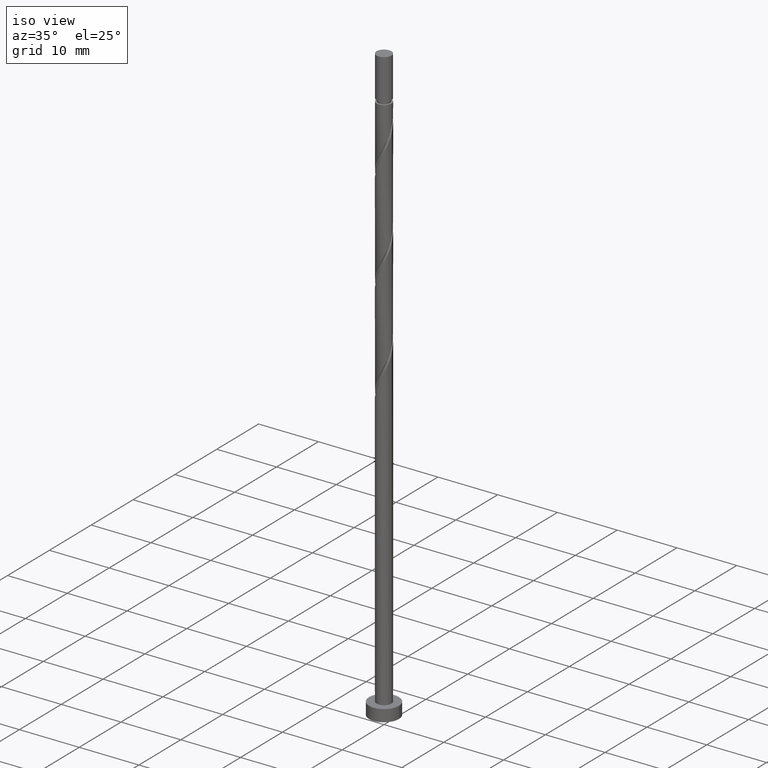
[diagram: clean part render]
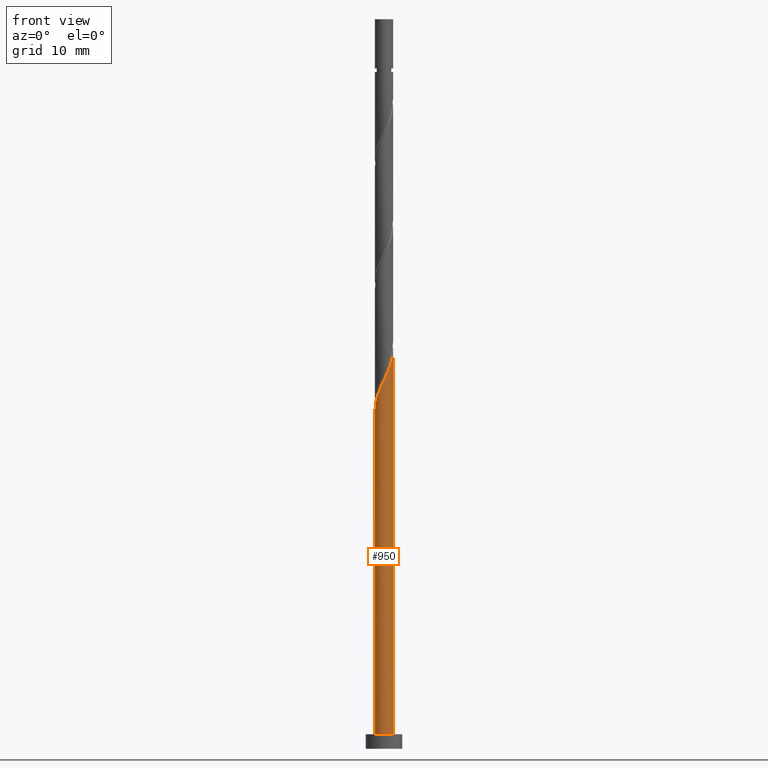
[diagram: tour spotlight — one face highlighted and labeled with its STEP entity id]
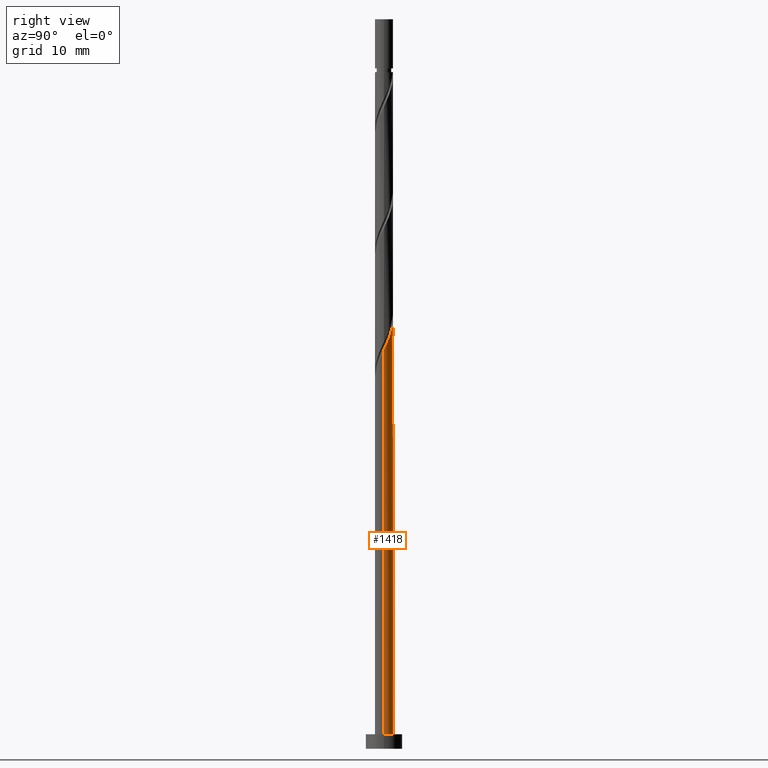
[diagram: tour spotlight — one face highlighted and labeled with its STEP entity id]
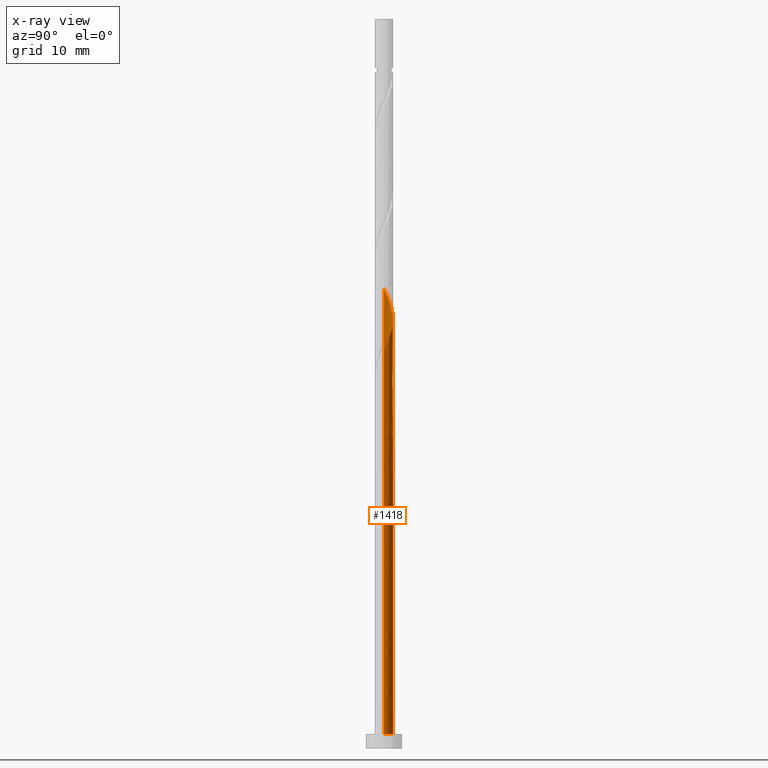
[diagram: x-ray of the same camera — body ghosted, this tour face saturated]
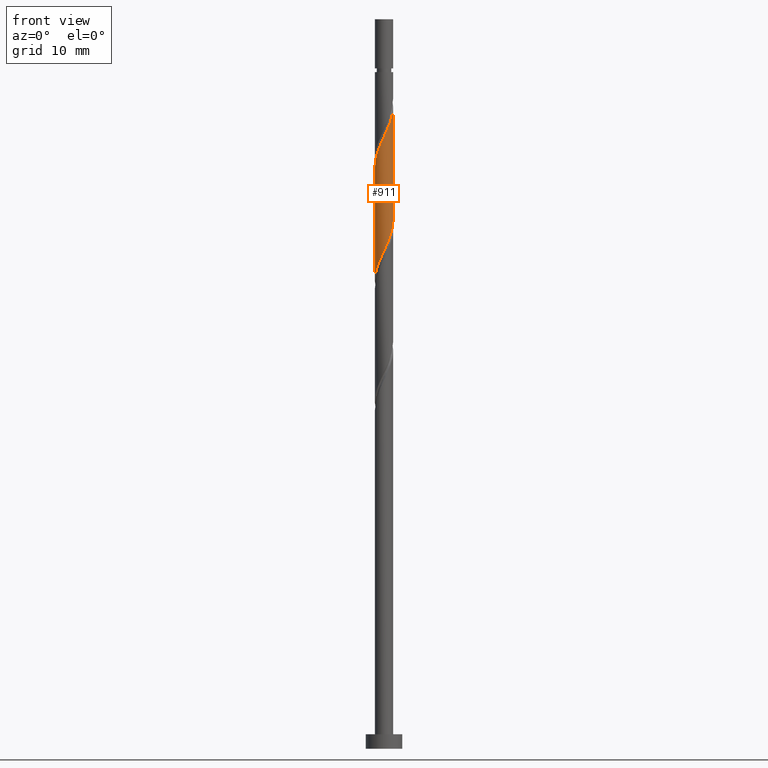
[diagram: tour spotlight — one face highlighted and labeled with its STEP entity id]
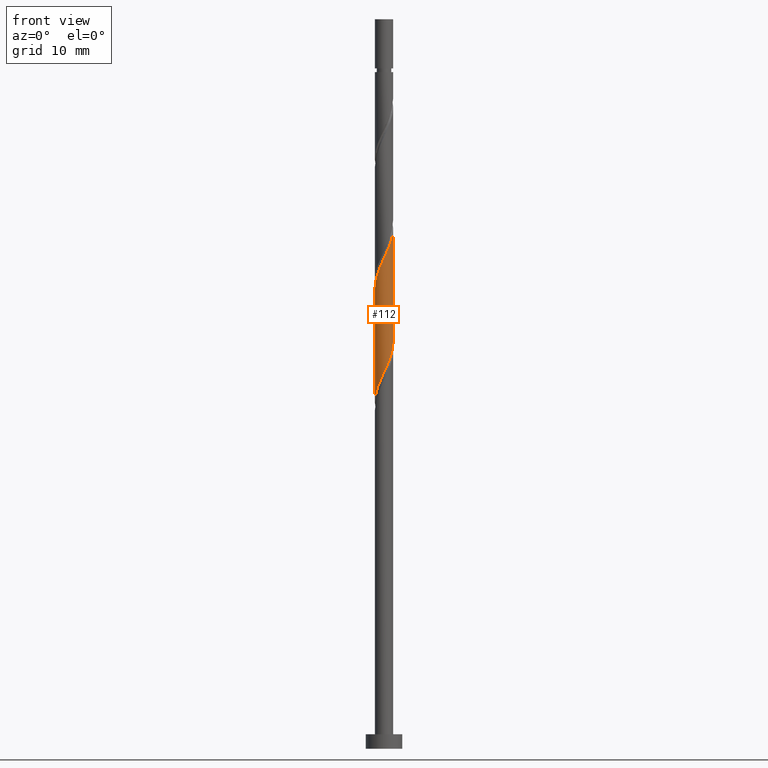
[diagram: tour spotlight — one face highlighted and labeled with its STEP entity id]
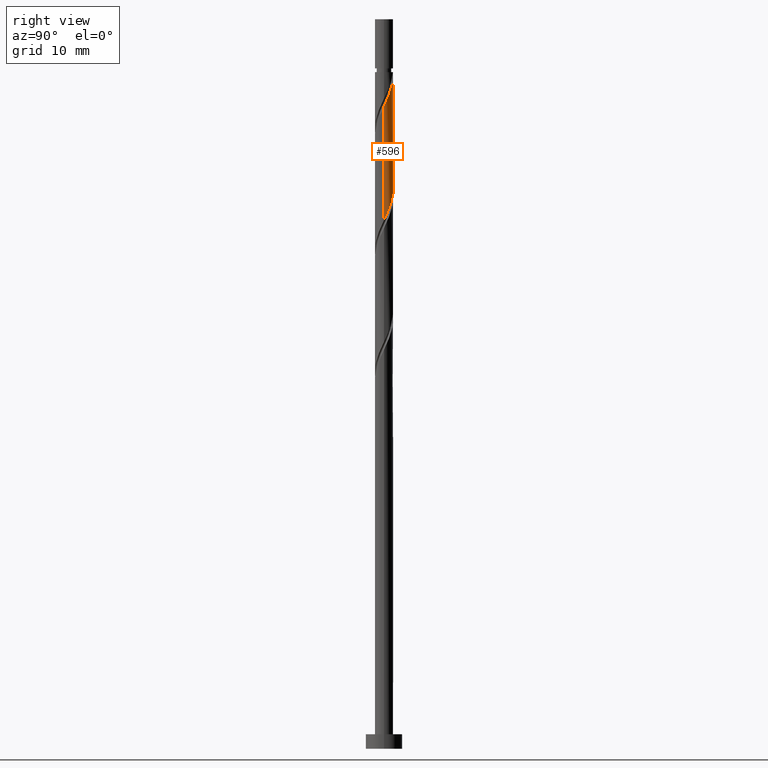
[diagram: tour spotlight — one face highlighted and labeled with its STEP entity id]
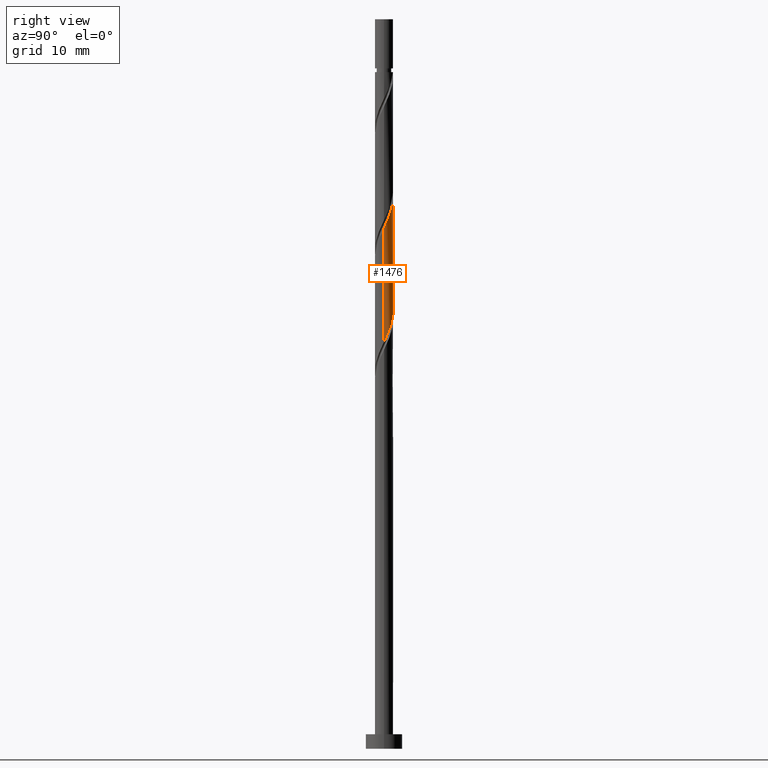
[diagram: tour spotlight — one face highlighted and labeled with its STEP entity id]
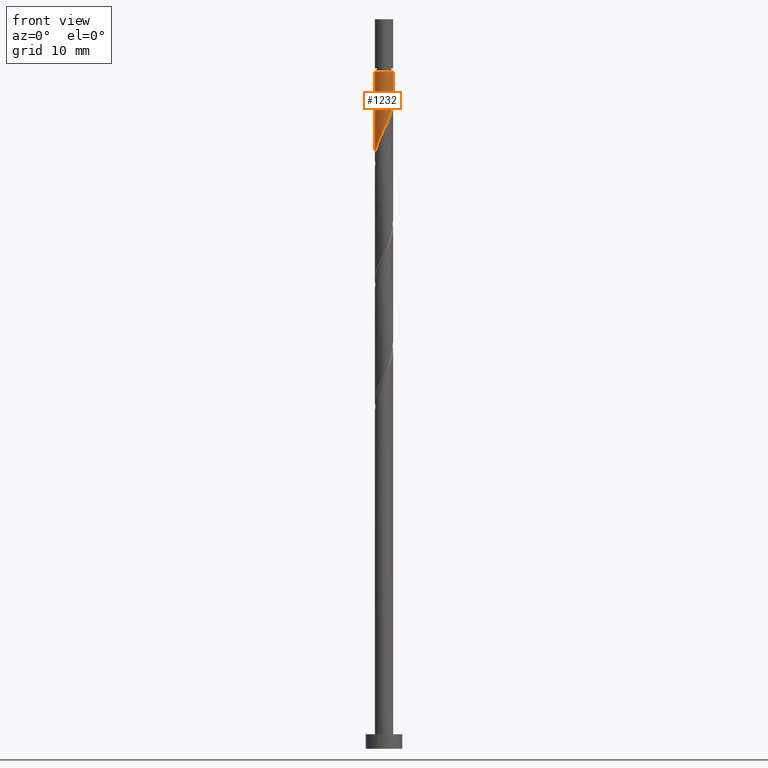
[diagram: tour spotlight — one face highlighted and labeled with its STEP entity id]
A machine part: a face-by-face anatomy tour. The part has 21 B-rep faces; the first image is the clean iso view, then the 7 largest visible faces are spotlighted one at a time (largest first), each with its STEP entity span.

Face 1 — front view, entity #950. In plain terms, the highlighted cylindrical surface (edge-blend (fillet) strip) has radius 1.25 mm, axis along (-0, -0, -1).
Definition (entity closure, byte-faithful):
#68 = CARTESIAN_POINT ( 'NONE',  ( -1.082492517692347000, -0.6627895258576391724, 47.84581808129873792 ) ) ;
#72 = EDGE_CURVE ( 'NONE', #1123, #193, #1204, .T. ) ;
#77 = CARTESIAN_POINT ( 'NONE',  ( 0.4647474106445247388, -1.181139217343036174, 51.54952178500242610 ) ) ;
#84 = CARTESIAN_POINT ( 'NONE',  ( 1.250000000000000000, 1.530808498934191571E-16, 100.0000000000000000 ) ) ;
#90 = CARTESIAN_POINT ( 'NONE',  ( 0.6527202636798884461, -1.066047024001128607, 52.01248474796540933 ) ) ;
#96 = CARTESIAN_POINT ( 'NONE',  ( -1.250000000000002220, -2.451857884508929308E-15, 46.38903726705071762 ) ) ;
#158 = AXIS2_PLACEMENT_3D ( 'NONE', #1323, #1205, #1094 ) ;
#193 = VERTEX_POINT ( 'NONE', #1297 ) ;
#194 = CARTESIAN_POINT ( 'NONE',  ( 0.03274630790878472336, -1.268860782656968000, 50.62359585907651649 ) ) ;
#201 = CARTESIAN_POINT ( 'NONE',  ( -1.250000000000002220, -2.451857884508928913E-15, 46.38903726705071762 ) ) ;
#214 = CARTESIAN_POINT ( 'NONE',  ( -0.4032044828447876039, -1.203539011191734343, 49.69766993315058556 ) ) ;
#322 = CARTESIAN_POINT ( 'NONE',  ( -0.7905228623028761614, -0.9930526726327152387, 48.77174400722464753 ) ) ;
#328 = ORIENTED_EDGE ( 'NONE', *, *, #72, .T. ) ;
#330 = CARTESIAN_POINT ( 'NONE',  ( -1.163195058626193656, -0.4576868531950767371, 47.38285511833578312 ) ) ;
#352 = CARTESIAN_POINT ( 'NONE',  ( 1.250000000000001776, -1.027053950098942163E-15, 54.72237060038404621 ) ) ;
#371 = VERTEX_POINT ( 'NONE', #352 ) ;
#404 = CYLINDRICAL_SURFACE ( 'NONE', #158, 1.250000000000000000 ) ;
#411 = CARTESIAN_POINT ( 'NONE',  ( 1.250000000000003553, -0.2038179647755680723, 54.29245108801844566 ) ) ;
#517 = DIRECTION ( 'NONE',  ( -0.000000000000000000, -0.000000000000000000, -1.000000000000000000 ) ) ;
#532 = CARTESIAN_POINT ( 'NONE',  ( 0.9779659711581923931, -0.7785130437292746564, 52.93841067389133315 ) ) ;
#550 = ORIENTED_EDGE ( 'NONE', *, *, #1043, .F. ) ;
#554 = EDGE_CURVE ( 'NONE', #193, #765, #1087, .T. ) ;
#636 = CARTESIAN_POINT ( 'NONE',  ( 0.8406931167152515982, -0.9509548306592204847, 52.47544771092834992 ) ) ;
#668 = CARTESIAN_POINT ( 'NONE',  ( 1.250000000000001998, -1.027053950098942163E-15, 54.72237060038404621 ) ) ;
#723 = DIRECTION ( 'NONE',  ( -0.000000000000000000, -0.000000000000000000, -1.000000000000000000 ) ) ;
#730 = CARTESIAN_POINT ( 'NONE',  ( -1.250000000000000000, 0.000000000000000000, 100.0000000000000000 ) ) ;
#751 = CARTESIAN_POINT ( 'NONE',  ( -0.1852290874680015964, -1.236199896924351282, 50.16063289611355458 ) ) ;
#759 = CARTESIAN_POINT ( 'NONE',  ( 1.115238825601131856, -0.6060712567993289390, 53.40137363685427374 ) ) ;
#765 = VERTEX_POINT ( 'NONE', #1082 ) ;
#832 =( BOUNDED_CURVE ( )  B_SPLINE_CURVE ( 2, ( #96, #984, #1220, #878, #330, #68, #1246, #322, #1328, #214, #751, #194, #1469, #77, #90, #636, #532, #759, #1443, #411, #668 ),
 .UNSPECIFIED., .F., .T. ) 
 B_SPLINE_CURVE_WITH_KNOTS ( ( 3, 2, 2, 2, 2, 2, 2, 2, 2, 2, 3 ),
 ( 0.05452480538552922917, 0.05555555555555558023, 0.06944444444444441977, 0.08333333333333337034, 0.09722222222222220989, 0.1111111111111111605, 0.1250000000000000000, 0.1388888888888888395, 0.1527777777777777901, 0.1666666666666666297, 0.1795248053855293402 ),
 .UNSPECIFIED. ) 
 CURVE ( )  GEOMETRIC_REPRESENTATION_ITEM ( )  RATIONAL_B_SPLINE_CURVE ( ( 0.9071930855141260297, 0.9080659294509735302, 0.9090909090909135015, 0.8952797754656481866, 0.9090909090909135015, 0.8952797754656481866, 0.9090909090909135015, 0.8952797754656481866, 0.9090909090909135015, 0.8952797754656481866, 0.9090909090909135015, 0.8952797754656481866, 0.9090909090909135015, 0.8952797754656481866, 0.9090909090909135015, 0.8952797754656481866, 0.9090909090909135015, 0.8952797754656481866, 0.9090909090909135015, 0.8963047551055879358, 0.9071930855141262517 ) ) 
 REPRESENTATION_ITEM ( '' )  );
#861 = LINE ( 'NONE', #84, #1115 ) ;
#878 = CARTESIAN_POINT ( 'NONE',  ( -1.243897599560039868, -0.2525841805325140799, 46.91989215537278568 ) ) ;
#950 = ADVANCED_FACE ( 'NONE', ( #1436 ), #404, .T. ) ;
#984 = CARTESIAN_POINT ( 'NONE',  ( -1.250000000000001998, -0.01612709291502830572, 46.42305464098307510 ) ) ;
#1008 = EDGE_CURVE ( 'NONE', #371, #765, #861, .T. ) ;
#1043 = EDGE_CURVE ( 'NONE', #1123, #371, #832, .T. ) ;
#1082 = CARTESIAN_POINT ( 'NONE',  ( 1.250000000000000000, 1.530808498934191571E-16, 2.000000000000000000 ) ) ;
#1087 = CIRCLE ( 'NONE', #1284, 1.250000000000000000 ) ;
#1094 = DIRECTION ( 'NONE',  ( -1.000000000000000000, 0.000000000000000000, 0.000000000000000000 ) ) ;
#1115 = VECTOR ( 'NONE', #517, 1000.000000000000000 ) ;
#1123 = VERTEX_POINT ( 'NONE', #201 ) ;
#1204 = LINE ( 'NONE', #730, #1274 ) ;
#1205 = DIRECTION ( 'NONE',  ( -0.000000000000000000, -0.000000000000000000, -1.000000000000000000 ) ) ;
#1220 = CARTESIAN_POINT ( 'NONE',  ( -1.249583936253720218, -0.03224881791109653756, 46.45692919240984509 ) ) ;
#1228 = ORIENTED_EDGE ( 'NONE', *, *, #554, .T. ) ;
#1246 = CARTESIAN_POINT ( 'NONE',  ( -0.9365076899976116920, -0.8279210992451770945, 48.30878104426169983 ) ) ;
#1274 = VECTOR ( 'NONE', #723, 1000.000000000000000 ) ;
#1282 = ORIENTED_EDGE ( 'NONE', *, *, #1008, .F. ) ;
#1284 = AXIS2_PLACEMENT_3D ( 'NONE', #1315, #1442, #1337 ) ;
#1297 = CARTESIAN_POINT ( 'NONE',  ( -1.250000000000000000, 0.000000000000000000, 2.000000000000000000 ) ) ;
#1315 = CARTESIAN_POINT ( 'NONE',  ( 0.000000000000000000, 0.000000000000000000, 2.000000000000000000 ) ) ;
#1323 = CARTESIAN_POINT ( 'NONE',  ( 0.000000000000000000, 0.000000000000000000, 100.0000000000000000 ) ) ;
#1328 = CARTESIAN_POINT ( 'NONE',  ( -0.5968636725738321047, -1.098295841912225068, 49.23470697018763786 ) ) ;
#1337 = DIRECTION ( 'NONE',  ( 1.000000000000000000, 0.000000000000000000, 0.000000000000000000 ) ) ;
#1359 = EDGE_LOOP ( 'NONE', ( #1282, #550, #328, #1228 ) ) ;
#1436 = FACE_OUTER_BOUND ( 'NONE', #1359, .T. ) ;
#1442 = DIRECTION ( 'NONE',  ( 0.000000000000000000, 0.000000000000000000, 1.000000000000000000 ) ) ;
#1443 = CARTESIAN_POINT ( 'NONE',  ( 1.185254549274266767, -0.3970789007548254923, 53.86433659981727118 ) ) ;
#1469 = CARTESIAN_POINT ( 'NONE',  ( 0.2487468592766550191, -1.225000000000002309, 51.08655882203948551 ) ) ;

Face 2 — right view, entity #1418. An x-ray twin of the same camera follows (body ghosted, this face saturated) — the face is partly hidden behind the body. In plain terms, the highlighted cylindrical surface (edge-blend (fillet) strip) has radius 1.25 mm, axis along (-0, -0, -1).
Definition (entity closure, byte-faithful):
#30 = CARTESIAN_POINT ( 'NONE',  ( 0.03274630790878532011, 1.268860782656966668, 43.21618845166910461 ) ) ;
#46 = CARTESIAN_POINT ( 'NONE',  ( 0.000000000000000000, 0.000000000000000000, 2.000000000000000000 ) ) ;
#58 = EDGE_CURVE ( 'NONE', #1487, #490, #233, .T. ) ;
#59 = CARTESIAN_POINT ( 'NONE',  ( -0.1852290874680007915, 1.236199896924349062, 43.67915141463204520 ) ) ;
#65 = CARTESIAN_POINT ( 'NONE',  ( -1.185254549274266767, 0.3970789007548250482, 45.53100326648392127 ) ) ;
#72 = EDGE_CURVE ( 'NONE', #1123, #193, #1204, .T. ) ;
#73 = CARTESIAN_POINT ( 'NONE',  ( -1.250000000000002220, -2.451857884508928913E-15, 63.05570393371738902 ) ) ;
#78 = VECTOR ( 'NONE', #1057, 1000.000000000000000 ) ;
#84 = CARTESIAN_POINT ( 'NONE',  ( 1.250000000000000000, 1.530808498934191571E-16, 100.0000000000000000 ) ) ;
#121 = EDGE_CURVE ( 'NONE', #490, #1245, #772, .T. ) ;
#131 = CARTESIAN_POINT ( 'NONE',  ( 1.082492517692347223, 0.6627895258576387283, 56.17915141463205941 ) ) ;
#138 = CARTESIAN_POINT ( 'NONE',  ( 1.250000000000001998, -1.027053950098942163E-15, 54.72237060038404621 ) ) ;
#144 = CARTESIAN_POINT ( 'NONE',  ( -1.185254549274266767, 0.3970789007548250482, 62.19766993315059977 ) ) ;
#151 = CARTESIAN_POINT ( 'NONE',  ( -1.115238825601132300, 0.6060712567993288280, 61.73470697018761655 ) ) ;
#176 = DIRECTION ( 'NONE',  ( 1.000000000000000000, 0.000000000000000000, 0.000000000000000000 ) ) ;
#177 = CARTESIAN_POINT ( 'NONE',  ( 0.7905228623028762724, 0.9930526726327152387, 57.10507734055799034 ) ) ;
#183 = FACE_OUTER_BOUND ( 'NONE', #1237, .T. ) ;
#190 = EDGE_CURVE ( 'NONE', #270, #1245, #909, .T. ) ;
#193 = VERTEX_POINT ( 'NONE', #1297 ) ;
#201 = CARTESIAN_POINT ( 'NONE',  ( -1.250000000000002220, -2.451857884508928913E-15, 46.38903726705071762 ) ) ;
#229 = ORIENTED_EDGE ( 'NONE', *, *, #121, .F. ) ;
#233 = LINE ( 'NONE', #366, #78 ) ;
#270 = VERTEX_POINT ( 'NONE', #1046 ) ;
#277 = CARTESIAN_POINT ( 'NONE',  ( -0.9779659711581923931, 0.7785130437292746564, 44.60507734055800455 ) ) ;
#319 =( BOUNDED_CURVE ( )  B_SPLINE_CURVE ( 2, ( #138, #1041, #1147, #921, #1156, #131, #1171, #177, #1099, #1107, #634, #996, #642, #1202, #1055, #601, #855, #151, #144, #826, #73 ),
 .UNSPECIFIED., .F., .T. ) 
 B_SPLINE_CURVE_WITH_KNOTS ( ( 3, 2, 2, 2, 2, 2, 2, 2, 2, 2, 3 ),
 ( 0.1795248053855293402, 0.1805555555555555802, 0.1944444444444444198, 0.2083333333333333703, 0.2222222222222222099, 0.2361111111111111605, 0.2500000000000000000, 0.2638888888888888395, 0.2777777777777777901, 0.2916666666666666297, 0.3045248053855292847 ),
 .UNSPECIFIED. ) 
 CURVE ( )  GEOMETRIC_REPRESENTATION_ITEM ( )  RATIONAL_B_SPLINE_CURVE ( ( 0.9071930855141262517, 0.9080659294509737522, 0.9090909090909135015, 0.8952797754656481866, 0.9090909090909135015, 0.8952797754656481866, 0.9090909090909135015, 0.8952797754656481866, 0.9090909090909135015, 0.8952797754656481866, 0.9090909090909135015, 0.8952797754656481866, 0.9090909090909135015, 0.8952797754656481866, 0.9090909090909135015, 0.8952797754656481866, 0.9090909090909135015, 0.8952797754656481866, 0.9090909090909135015, 0.8963047551055880469, 0.9071930855141261407 ) ) 
 REPRESENTATION_ITEM ( '' )  );
#352 = CARTESIAN_POINT ( 'NONE',  ( 1.250000000000001776, -1.027053950098942163E-15, 54.72237060038404621 ) ) ;
#366 = CARTESIAN_POINT ( 'NONE',  ( -1.250000000000000000, 0.000000000000000000, 100.0000000000000000 ) ) ;
#371 = VERTEX_POINT ( 'NONE', #352 ) ;
#409 = DIRECTION ( 'NONE',  ( -0.000000000000000000, -0.000000000000000000, -1.000000000000000000 ) ) ;
#480 = DIRECTION ( 'NONE',  ( -1.000000000000000000, 0.000000000000000000, 0.000000000000000000 ) ) ;
#489 = CIRCLE ( 'NONE', #952, 1.250000000000000000 ) ;
#490 = VERTEX_POINT ( 'NONE', #1355 ) ;
#494 = CARTESIAN_POINT ( 'NONE',  ( -1.249583936253718219, 0.03224881791109680124, 47.38285511833575470 ) ) ;
#517 = DIRECTION ( 'NONE',  ( -0.000000000000000000, -0.000000000000000000, -1.000000000000000000 ) ) ;
#586 = AXIS2_PLACEMENT_3D ( 'NONE', #708, #409, #747 ) ;
#601 = CARTESIAN_POINT ( 'NONE',  ( -0.8406931167152518203, 0.9509548306592201516, 60.80878104426169273 ) ) ;
#620 = CARTESIAN_POINT ( 'NONE',  ( -1.250000000000002220, -2.451857884508929308E-15, 46.38903726705071762 ) ) ;
#621 = CARTESIAN_POINT ( 'NONE',  ( -1.082492517692345224, 0.6627895258576387283, 45.99396622944688318 ) ) ;
#634 = CARTESIAN_POINT ( 'NONE',  ( 0.1852290874680022348, 1.236199896924351060, 58.49396622944687607 ) ) ;
#642 = CARTESIAN_POINT ( 'NONE',  ( -0.2487468592766548803, 1.225000000000002309, 59.41989215537281410 ) ) ;
#645 = EDGE_CURVE ( 'NONE', #765, #193, #489, .T. ) ;
#652 = ORIENTED_EDGE ( 'NONE', *, *, #1008, .T. ) ;
#653 = ORIENTED_EDGE ( 'NONE', *, *, #645, .T. ) ;
#708 = CARTESIAN_POINT ( 'NONE',  ( 0.000000000000000000, 0.000000000000000000, 100.0000000000000000 ) ) ;
#720 = DIRECTION ( 'NONE',  ( 0.000000000000000000, 0.000000000000000000, 1.000000000000000000 ) ) ;
#723 = DIRECTION ( 'NONE',  ( -0.000000000000000000, -0.000000000000000000, -1.000000000000000000 ) ) ;
#728 = EDGE_CURVE ( 'NONE', #270, #1123, #932, .T. ) ;
#730 = CARTESIAN_POINT ( 'NONE',  ( -1.250000000000000000, 0.000000000000000000, 100.0000000000000000 ) ) ;
#747 = DIRECTION ( 'NONE',  ( -1.000000000000000000, 0.000000000000000000, 0.000000000000000000 ) ) ;
#764 = ORIENTED_EDGE ( 'NONE', *, *, #72, .F. ) ;
#765 = VERTEX_POINT ( 'NONE', #1082 ) ;
#772 =( BOUNDED_CURVE ( )  B_SPLINE_CURVE ( 2, ( #1078, #849, #494, #1316, #835, #621, #1093, #1410, #1083, #1302, #59, #30, #813 ),
 .UNSPECIFIED., .F., .T. ) 
 B_SPLINE_CURVE_WITH_KNOTS ( ( 3, 2, 2, 2, 2, 2, 3 ),
 ( 0.9295248053855289516, 0.9305555555555555802, 0.9444444444444444198, 0.9583333333333333703, 0.9722222222222222099, 0.9861111111111111605, 1.000000000000000000 ),
 .UNSPECIFIED. ) 
 CURVE ( )  GEOMETRIC_REPRESENTATION_ITEM ( )  RATIONAL_B_SPLINE_CURVE ( ( 0.9071930855141195904, 0.9080659294509673130, 0.9090909090909075063, 0.8952797754656419693, 0.9090909090909075063, 0.8952797754656419693, 0.9090909090909075063, 0.8952797754656419693, 0.9090909090909075063, 0.8952797754656419693, 0.9090909090909075063, 0.8952797754656419693, 0.9090909090909075063 ) ) 
 REPRESENTATION_ITEM ( '' )  );
#806 = ORIENTED_EDGE ( 'NONE', *, *, #58, .F. ) ;
#813 = CARTESIAN_POINT ( 'NONE',  ( 0.2487468592766552966, 1.225000000000000089, 42.75322548870613559 ) ) ;
#823 = CARTESIAN_POINT ( 'NONE',  ( -0.8406931167152518203, 0.9509548306592201516, 44.14211437759501422 ) ) ;
#826 = CARTESIAN_POINT ( 'NONE',  ( -1.250000000000003109, 0.2038179647755682389, 62.62578442135176005 ) ) ;
#835 = CARTESIAN_POINT ( 'NONE',  ( -1.163195058626191214, 0.4576868531950761820, 46.45692919240983088 ) ) ;
#840 = CARTESIAN_POINT ( 'NONE',  ( -0.2487468592766548803, 1.225000000000002309, 42.75322548870613559 ) ) ;
#849 = CARTESIAN_POINT ( 'NONE',  ( -1.250000000000000000, 0.01612709291502425688, 47.41672966976253178 ) ) ;
#855 = CARTESIAN_POINT ( 'NONE',  ( -0.9779659711581923931, 0.7785130437292746564, 61.27174400722467595 ) ) ;
#861 = LINE ( 'NONE', #84, #1115 ) ;
#909 = CIRCLE ( 'NONE', #1106, 1.250000000000000000 ) ;
#921 = CARTESIAN_POINT ( 'NONE',  ( 1.243897599560039868, 0.2525841805325139688, 55.25322548870612849 ) ) ;
#926 = CARTESIAN_POINT ( 'NONE',  ( 0.000000000000000000, 0.000000000000000000, 42.75322548870613559 ) ) ;
#932 =( BOUNDED_CURVE ( )  B_SPLINE_CURVE ( 2, ( #840, #1306, #1088, #823, #277, #976, #65, #1429, #620 ),
 .UNSPECIFIED., .F., .T. ) 
 B_SPLINE_CURVE_WITH_KNOTS ( ( 3, 2, 2, 2, 3 ),
 ( 0.000000000000000000, 0.01388888888888883955, 0.02777777777777779011, 0.04166666666666662966, 0.05452480538552922917 ),
 .UNSPECIFIED. ) 
 CURVE ( )  GEOMETRIC_REPRESENTATION_ITEM ( )  RATIONAL_B_SPLINE_CURVE ( ( 0.9090909090909135015, 0.8952797754656481866, 0.9090909090909135015, 0.8952797754656481866, 0.9090909090909135015, 0.8952797754656481866, 0.9090909090909135015, 0.8963047551055881579, 0.9071930855141260297 ) ) 
 REPRESENTATION_ITEM ( '' )  );
#952 = AXIS2_PLACEMENT_3D ( 'NONE', #46, #720, #176 ) ;
#976 = CARTESIAN_POINT ( 'NONE',  ( -1.115238825601132300, 0.6060712567993288280, 45.06804030352094514 ) ) ;
#996 = CARTESIAN_POINT ( 'NONE',  ( -0.03274630790878510500, 1.268860782656968000, 58.95692919240984509 ) ) ;
#1008 = EDGE_CURVE ( 'NONE', #371, #765, #861, .T. ) ;
#1041 = CARTESIAN_POINT ( 'NONE',  ( 1.250000000000001776, 0.01612709291503009248, 54.75638797431641791 ) ) ;
#1046 = CARTESIAN_POINT ( 'NONE',  ( -0.2487468592766548803, 1.225000000000002309, 42.75322548870613559 ) ) ;
#1055 = CARTESIAN_POINT ( 'NONE',  ( -0.6527202636798885571, 1.066047024001128607, 60.34581808129874503 ) ) ;
#1057 = DIRECTION ( 'NONE',  ( -0.000000000000000000, -0.000000000000000000, -1.000000000000000000 ) ) ;
#1069 = ORIENTED_EDGE ( 'NONE', *, *, #190, .T. ) ;
#1078 = CARTESIAN_POINT ( 'NONE',  ( -1.250000000000000222, -7.021314277040088684E-16, 47.45074704369489638 ) ) ;
#1082 = CARTESIAN_POINT ( 'NONE',  ( 1.250000000000000000, 1.530808498934191571E-16, 2.000000000000000000 ) ) ;
#1083 = CARTESIAN_POINT ( 'NONE',  ( -0.5968636725738306614, 1.098295841912223070, 44.60507734055797613 ) ) ;
#1088 = CARTESIAN_POINT ( 'NONE',  ( -0.6527202636798885571, 1.066047024001128607, 43.67915141463208073 ) ) ;
#1093 = CARTESIAN_POINT ( 'NONE',  ( -0.9365076899976096936, 0.8279210992451759843, 45.53100326648391416 ) ) ;
#1099 = CARTESIAN_POINT ( 'NONE',  ( 0.5968636725738323268, 1.098295841912225068, 57.56804030352096646 ) ) ;
#1106 = AXIS2_PLACEMENT_3D ( 'NONE', #926, #1414, #480 ) ;
#1107 = CARTESIAN_POINT ( 'NONE',  ( 0.4032044828447884366, 1.203539011191733898, 58.03100326648392127 ) ) ;
#1115 = VECTOR ( 'NONE', #517, 1000.000000000000000 ) ;
#1117 = ORIENTED_EDGE ( 'NONE', *, *, #728, .F. ) ;
#1123 = VERTEX_POINT ( 'NONE', #201 ) ;
#1136 = CARTESIAN_POINT ( 'NONE',  ( -1.250000000000002220, -2.451857884508928913E-15, 63.05570393371738902 ) ) ;
#1147 = CARTESIAN_POINT ( 'NONE',  ( 1.249583936253720218, 0.03224881791109665552, 54.79026252574318789 ) ) ;
#1156 = CARTESIAN_POINT ( 'NONE',  ( 1.163195058626193878, 0.4576868531950764596, 55.71618845166910461 ) ) ;
#1171 = CARTESIAN_POINT ( 'NONE',  ( 0.9365076899976113589, 0.8279210992451773166, 56.64211437759503553 ) ) ;
#1202 = CARTESIAN_POINT ( 'NONE',  ( -0.4647474106445250719, 1.181139217343036174, 59.88285511833576180 ) ) ;
#1204 = LINE ( 'NONE', #730, #1274 ) ;
#1237 = EDGE_LOOP ( 'NONE', ( #1375, #652, #653, #764, #1117, #1069, #229, #806 ) ) ;
#1245 = VERTEX_POINT ( 'NONE', #1387 ) ;
#1274 = VECTOR ( 'NONE', #723, 1000.000000000000000 ) ;
#1297 = CARTESIAN_POINT ( 'NONE',  ( -1.250000000000000000, 0.000000000000000000, 2.000000000000000000 ) ) ;
#1302 = CARTESIAN_POINT ( 'NONE',  ( -0.4032044828447868823, 1.203539011191732566, 44.14211437759503553 ) ) ;
#1306 = CARTESIAN_POINT ( 'NONE',  ( -0.4647474106445250719, 1.181139217343036174, 43.21618845166909040 ) ) ;
#1316 = CARTESIAN_POINT ( 'NONE',  ( -1.243897599560038314, 0.2525841805325140244, 46.91989215537280700 ) ) ;
#1340 = EDGE_CURVE ( 'NONE', #371, #1487, #319, .T. ) ;
#1355 = CARTESIAN_POINT ( 'NONE',  ( -1.250000000000000222, -7.021314277040088684E-16, 47.45074704369489638 ) ) ;
#1375 = ORIENTED_EDGE ( 'NONE', *, *, #1340, .F. ) ;
#1387 = CARTESIAN_POINT ( 'NONE',  ( 0.2487468592766552966, 1.225000000000000089, 42.75322548870613559 ) ) ;
#1410 = CARTESIAN_POINT ( 'NONE',  ( -0.7905228623028748292, 0.9930526726327140175, 45.06804030352095936 ) ) ;
#1414 = DIRECTION ( 'NONE',  ( 0.000000000000000000, -0.000000000000000000, -1.000000000000000000 ) ) ;
#1418 = ADVANCED_FACE ( 'NONE', ( #183 ), #1440, .T. ) ;
#1429 = CARTESIAN_POINT ( 'NONE',  ( -1.250000000000002887, 0.2038179647755690715, 45.95911775468509575 ) ) ;
#1440 = CYLINDRICAL_SURFACE ( 'NONE', #586, 1.250000000000000000 ) ;
#1487 = VERTEX_POINT ( 'NONE', #1136 ) ;

Face 3 — front view, entity #911. In plain terms, the highlighted cylindrical surface (edge-blend (fillet) strip) has radius 1.25 mm, axis along (-0, -0, -1).
Definition (entity closure, byte-faithful):
#4 =( BOUNDED_CURVE ( )  B_SPLINE_CURVE ( 2, ( #920, #1267, #1155, #578, #363, #789, #130, #1146, #122, #468, #568, #801, #684, #1145, #453, #1386, #239, #1154, #1035, #798, #1423 ),
 .UNSPECIFIED., .F., .T. ) 
 B_SPLINE_CURVE_WITH_KNOTS ( ( 3, 2, 2, 2, 2, 2, 2, 2, 2, 2, 3 ),
 ( 0.5545248053855288406, 0.5555555555555555802, 0.5694444444444444198, 0.5833333333333333703, 0.5972222222222222099, 0.6111111111111111605, 0.6250000000000000000, 0.6388888888888888395, 0.6527777777777777901, 0.6666666666666666297, 0.6795248053855288406 ),
 .UNSPECIFIED. ) 
 CURVE ( )  GEOMETRIC_REPRESENTATION_ITEM ( )  RATIONAL_B_SPLINE_CURVE ( ( 0.9071930855141193684, 0.9080659294509672019, 0.9090909090909075063, 0.8952797754656419693, 0.9090909090909075063, 0.8952797754656419693, 0.9090909090909075063, 0.8952797754656419693, 0.9090909090909075063, 0.8952797754656419693, 0.9090909090909075063, 0.8952797754656419693, 0.9090909090909075063, 0.8952797754656419693, 0.9090909090909075063, 0.8952797754656419693, 0.9090909090909075063, 0.8952797754656419693, 0.9090909090909075063, 0.8963047551055822737, 0.9071930855141193684 ) ) 
 REPRESENTATION_ITEM ( '' )  );
#43 = EDGE_CURVE ( 'NONE', #421, #451, #74, .T. ) ;
#53 = CARTESIAN_POINT ( 'NONE',  ( 0.8406931167152515982, -0.9509548306592204847, 85.80878104426170694 ) ) ;
#60 = CARTESIAN_POINT ( 'NONE',  ( 1.185254549274266767, -0.3970789007548254923, 87.19766993315060688 ) ) ;
#74 = LINE ( 'NONE', #523, #573 ) ;
#122 = CARTESIAN_POINT ( 'NONE',  ( 0.5968636725738306614, -1.098295841912223070, 69.60507734055798323 ) ) ;
#124 = EDGE_CURVE ( 'NONE', #675, #908, #1281, .T. ) ;
#130 = CARTESIAN_POINT ( 'NONE',  ( 0.9365076899976095826, -0.8279210992451763174, 70.53100326648387863 ) ) ;
#147 = CARTESIAN_POINT ( 'NONE',  ( -0.9365076899976116920, -0.8279210992451770945, 81.64211437759503553 ) ) ;
#173 = DIRECTION ( 'NONE',  ( -1.000000000000000000, 0.000000000000000000, 0.000000000000000000 ) ) ;
#178 = DIRECTION ( 'NONE',  ( -0.000000000000000000, -0.000000000000000000, -1.000000000000000000 ) ) ;
#227 = AXIS2_PLACEMENT_3D ( 'NONE', #266, #178, #173 ) ;
#238 = EDGE_LOOP ( 'NONE', ( #683, #263, #1468, #335 ) ) ;
#239 = CARTESIAN_POINT ( 'NONE',  ( -0.9779659711581906167, -0.7785130437292729910, 65.90137363685427374 ) ) ;
#251 = CARTESIAN_POINT ( 'NONE',  ( -1.250000000000001776, -2.317407185586885333E-15, 79.72237060038406753 ) ) ;
#255 = CARTESIAN_POINT ( 'NONE',  ( 1.250000000000000000, 1.530808498934191571E-16, 100.0000000000000000 ) ) ;
#263 = ORIENTED_EDGE ( 'NONE', *, *, #850, .F. ) ;
#266 = CARTESIAN_POINT ( 'NONE',  ( 0.000000000000000000, 0.000000000000000000, 100.0000000000000000 ) ) ;
#327 =( BOUNDED_CURVE ( )  B_SPLINE_CURVE ( 2, ( #251, #1051, #374, #819, #703, #1173, #147, #1064, #965, #1193, #949, #830, #630, #731, #960, #53, #1412, #1295, #60, #485, #504 ),
 .UNSPECIFIED., .F., .T. ) 
 B_SPLINE_CURVE_WITH_KNOTS ( ( 3, 2, 2, 2, 2, 2, 2, 2, 2, 2, 3 ),
 ( 0.5545248053855290626, 0.5555555555555555802, 0.5694444444444444198, 0.5833333333333332593, 0.5972222222222222099, 0.6111111111111111605, 0.6250000000000000000, 0.6388888888888888395, 0.6527777777777777901, 0.6666666666666667407, 0.6795248053855287296 ),
 .UNSPECIFIED. ) 
 CURVE ( )  GEOMETRIC_REPRESENTATION_ITEM ( )  RATIONAL_B_SPLINE_CURVE ( ( 0.9071930855141258077, 0.9080659294509734192, 0.9090909090909135015, 0.8952797754656481866, 0.9090909090909135015, 0.8952797754656481866, 0.9090909090909135015, 0.8952797754656481866, 0.9090909090909135015, 0.8952797754656481866, 0.9090909090909135015, 0.8952797754656481866, 0.9090909090909135015, 0.8952797754656481866, 0.9090909090909135015, 0.8952797754656481866, 0.9090909090909135015, 0.8952797754656481866, 0.9090909090909135015, 0.8963047551055886020, 0.9071930855141252525 ) ) 
 REPRESENTATION_ITEM ( '' )  );
#335 = ORIENTED_EDGE ( 'NONE', *, *, #580, .F. ) ;
#363 = CARTESIAN_POINT ( 'NONE',  ( 1.163195058626191214, -0.4576868531950760710, 71.45692919240983088 ) ) ;
#374 = CARTESIAN_POINT ( 'NONE',  ( -1.249583936253720218, -0.03224881791109653756, 79.79026252574318789 ) ) ;
#421 = VERTEX_POINT ( 'NONE', #648 ) ;
#434 = CARTESIAN_POINT ( 'NONE',  ( -1.250000000000000222, -7.021314277040088684E-16, 64.11741371036157489 ) ) ;
#451 = VERTEX_POINT ( 'NONE', #434 ) ;
#453 = CARTESIAN_POINT ( 'NONE',  ( -0.6527202636798878910, -1.066047024001125942, 66.82729956278019756 ) ) ;
#468 = CARTESIAN_POINT ( 'NONE',  ( 0.4032044828447866602, -1.203539011191733010, 69.14211437759502132 ) ) ;
#481 = VECTOR ( 'NONE', #700, 1000.000000000000000 ) ;
#485 = CARTESIAN_POINT ( 'NONE',  ( 1.250000000000000000, -0.2038179647755774815, 87.62578442135172452 ) ) ;
#504 = CARTESIAN_POINT ( 'NONE',  ( 1.250000000000001998, 5.770175828737692961E-16, 88.05570393371741034 ) ) ;
#523 = CARTESIAN_POINT ( 'NONE',  ( -1.250000000000000000, 0.000000000000000000, 100.0000000000000000 ) ) ;
#568 = CARTESIAN_POINT ( 'NONE',  ( 0.1852290874680007082, -1.236199896924349062, 68.67915141463204520 ) ) ;
#573 = VECTOR ( 'NONE', #1424, 1000.000000000000000 ) ;
#578 = CARTESIAN_POINT ( 'NONE',  ( 1.243897599560038314, -0.2525841805325141909, 71.91989215537279279 ) ) ;
#580 = EDGE_CURVE ( 'NONE', #908, #451, #4, .T. ) ;
#607 = CARTESIAN_POINT ( 'NONE',  ( 1.250000000000001776, 5.770175828737692961E-16, 88.05570393371739613 ) ) ;
#630 = CARTESIAN_POINT ( 'NONE',  ( 0.2487468592766550191, -1.225000000000002309, 84.41989215537283542 ) ) ;
#648 = CARTESIAN_POINT ( 'NONE',  ( -1.250000000000001776, -2.317407185586885333E-15, 79.72237060038406753 ) ) ;
#675 = VERTEX_POINT ( 'NONE', #607 ) ;
#683 = ORIENTED_EDGE ( 'NONE', *, *, #124, .F. ) ;
#684 = CARTESIAN_POINT ( 'NONE',  ( -0.2487468592766550746, -1.224999999999999867, 67.75322548870612138 ) ) ;
#700 = DIRECTION ( 'NONE',  ( -0.000000000000000000, -0.000000000000000000, -1.000000000000000000 ) ) ;
#703 = CARTESIAN_POINT ( 'NONE',  ( -1.163195058626193656, -0.4576868531950767371, 80.71618845166909750 ) ) ;
#710 = FACE_OUTER_BOUND ( 'NONE', #238, .T. ) ;
#731 = CARTESIAN_POINT ( 'NONE',  ( 0.4647474106445247388, -1.181139217343036174, 84.88285511833576891 ) ) ;
#736 = CYLINDRICAL_SURFACE ( 'NONE', #227, 1.250000000000000000 ) ;
#789 = CARTESIAN_POINT ( 'NONE',  ( 1.082492517692345002, -0.6627895258576392834, 70.99396622944686897 ) ) ;
#798 = CARTESIAN_POINT ( 'NONE',  ( -1.249999999999999112, -0.2038179647755743729, 64.54733322272718965 ) ) ;
#801 = CARTESIAN_POINT ( 'NONE',  ( -0.03274630790878577807, -1.268860782656966890, 68.21618845166911171 ) ) ;
#819 = CARTESIAN_POINT ( 'NONE',  ( -1.243897599560039868, -0.2525841805325140799, 80.25322548870612138 ) ) ;
#830 = CARTESIAN_POINT ( 'NONE',  ( 0.03274630790878472336, -1.268860782656968000, 83.95692919240984509 ) ) ;
#850 = EDGE_CURVE ( 'NONE', #421, #675, #327, .T. ) ;
#908 = VERTEX_POINT ( 'NONE', #1426 ) ;
#911 = ADVANCED_FACE ( 'NONE', ( #710 ), #736, .T. ) ;
#920 = CARTESIAN_POINT ( 'NONE',  ( 1.250000000000000444, 1.923391942912577386E-16, 72.45074704369490348 ) ) ;
#949 = CARTESIAN_POINT ( 'NONE',  ( -0.1852290874680015964, -1.236199896924351282, 83.49396622944689739 ) ) ;
#960 = CARTESIAN_POINT ( 'NONE',  ( 0.6527202636798884461, -1.066047024001128607, 85.34581808129874503 ) ) ;
#965 = CARTESIAN_POINT ( 'NONE',  ( -0.5968636725738321047, -1.098295841912225068, 82.56804030352097357 ) ) ;
#1035 = CARTESIAN_POINT ( 'NONE',  ( -1.185254549274264768, -0.3970789007548236604, 64.97544771092834992 ) ) ;
#1051 = CARTESIAN_POINT ( 'NONE',  ( -1.250000000000001998, -0.01612709291502557526, 79.75638797431642502 ) ) ;
#1064 = CARTESIAN_POINT ( 'NONE',  ( -0.7905228623028761614, -0.9930526726327152387, 82.10507734055798323 ) ) ;
#1145 = CARTESIAN_POINT ( 'NONE',  ( -0.4647474106445250719, -1.181139217343034176, 67.29026252574317368 ) ) ;
#1146 = CARTESIAN_POINT ( 'NONE',  ( 0.7905228623028744961, -0.9930526726327140175, 70.06804030352097357 ) ) ;
#1154 = CARTESIAN_POINT ( 'NONE',  ( -1.115238825601130745, -0.6060712567993279398, 65.43841067389134025 ) ) ;
#1155 = CARTESIAN_POINT ( 'NONE',  ( 1.249583936253718663, -0.03224881791109725920, 72.38285511833575470 ) ) ;
#1173 = CARTESIAN_POINT ( 'NONE',  ( -1.082492517692347000, -0.6627895258576391724, 81.17915141463207362 ) ) ;
#1193 = CARTESIAN_POINT ( 'NONE',  ( -0.4032044828447876039, -1.203539011191734343, 83.03100326648392127 ) ) ;
#1267 = CARTESIAN_POINT ( 'NONE',  ( 1.250000000000000222, -0.01612709291502300094, 72.41672966976251757 ) ) ;
#1281 = LINE ( 'NONE', #255, #481 ) ;
#1295 = CARTESIAN_POINT ( 'NONE',  ( 1.115238825601131856, -0.6060712567993289390, 86.73470697018760234 ) ) ;
#1386 = CARTESIAN_POINT ( 'NONE',  ( -0.8406931167152508211, -0.9509548306592188194, 66.36433659981726407 ) ) ;
#1412 = CARTESIAN_POINT ( 'NONE',  ( 0.9779659711581923931, -0.7785130437292746564, 86.27174400722468306 ) ) ;
#1423 = CARTESIAN_POINT ( 'NONE',  ( -1.250000000000000000, -7.021314277040088684E-16, 64.11741371036157489 ) ) ;
#1424 = DIRECTION ( 'NONE',  ( -0.000000000000000000, -0.000000000000000000, -1.000000000000000000 ) ) ;
#1426 = CARTESIAN_POINT ( 'NONE',  ( 1.250000000000000444, 1.923391942912577386E-16, 72.45074704369488927 ) ) ;
#1468 = ORIENTED_EDGE ( 'NONE', *, *, #43, .T. ) ;

Face 4 — front view, entity #112. In plain terms, the highlighted cylindrical surface (edge-blend (fillet) strip) has radius 1.25 mm, axis along (-0, -0, -1).
Definition (entity closure, byte-faithful):
#32 = CARTESIAN_POINT ( 'NONE',  ( -1.082492517692347000, -0.6627895258576391724, 64.51248474796537380 ) ) ;
#41 = CYLINDRICAL_SURFACE ( 'NONE', #546, 1.250000000000000000 ) ;
#58 = EDGE_CURVE ( 'NONE', #1487, #490, #233, .T. ) ;
#66 = CARTESIAN_POINT ( 'NONE',  ( -0.7905228623028761614, -0.9930526726327152387, 65.43841067389132604 ) ) ;
#78 = VECTOR ( 'NONE', #1057, 1000.000000000000000 ) ;
#83 = ORIENTED_EDGE ( 'NONE', *, *, #391, .F. ) ;
#89 = VERTEX_POINT ( 'NONE', #959 ) ;
#92 = CARTESIAN_POINT ( 'NONE',  ( 1.082492517692345002, -0.6627895258576392834, 54.32729956278021177 ) ) ;
#106 = CARTESIAN_POINT ( 'NONE',  ( 0.1852290874680007082, -1.236199896924349062, 52.01248474796538090 ) ) ;
#112 = ADVANCED_FACE ( 'NONE', ( #1308 ), #41, .T. ) ;
#157 = EDGE_LOOP ( 'NONE', ( #937, #1482, #1048, #83 ) ) ;
#165 =( BOUNDED_CURVE ( )  B_SPLINE_CURVE ( 2, ( #362, #807, #967, #188, #209, #92, #638, #1349, #1231, #1463, #106, #670, #1452, #873, #317, #216, #1110, #1132, #761, #548, #1222 ),
 .UNSPECIFIED., .F., .T. ) 
 B_SPLINE_CURVE_WITH_KNOTS ( ( 3, 2, 2, 2, 2, 2, 2, 2, 2, 2, 3 ),
 ( 0.8045248053855289516, 0.8055555555555555802, 0.8194444444444444198, 0.8333333333333333703, 0.8472222222222222099, 0.8611111111111111605, 0.8750000000000000000, 0.8888888888888888395, 0.9027777777777777901, 0.9166666666666666297, 0.9295248053855289516 ),
 .UNSPECIFIED. ) 
 CURVE ( )  GEOMETRIC_REPRESENTATION_ITEM ( )  RATIONAL_B_SPLINE_CURVE ( ( 0.9071930855141195904, 0.9080659294509673130, 0.9090909090909075063, 0.8952797754656419693, 0.9090909090909075063, 0.8952797754656419693, 0.9090909090909075063, 0.8952797754656419693, 0.9090909090909075063, 0.8952797754656419693, 0.9090909090909075063, 0.8952797754656419693, 0.9090909090909075063, 0.8952797754656419693, 0.9090909090909075063, 0.8952797754656419693, 0.9090909090909075063, 0.8952797754656419693, 0.9090909090909075063, 0.8963047551055821627, 0.9071930855141195904 ) ) 
 REPRESENTATION_ITEM ( '' )  );
#166 = DIRECTION ( 'NONE',  ( -0.000000000000000000, -0.000000000000000000, -1.000000000000000000 ) ) ;
#188 = CARTESIAN_POINT ( 'NONE',  ( 1.243897599560038314, -0.2525841805325141909, 55.25322548870614270 ) ) ;
#209 = CARTESIAN_POINT ( 'NONE',  ( 1.163195058626191214, -0.4576868531950760710, 54.79026252574316658 ) ) ;
#216 = CARTESIAN_POINT ( 'NONE',  ( -0.8406931167152508211, -0.9509548306592188194, 49.69766993315058556 ) ) ;
#233 = LINE ( 'NONE', #366, #78 ) ;
#237 = CARTESIAN_POINT ( 'NONE',  ( 1.250000000000000000, 1.530808498934191571E-16, 100.0000000000000000 ) ) ;
#287 = CARTESIAN_POINT ( 'NONE',  ( 0.6527202636798884461, -1.066047024001128607, 68.67915141463210205 ) ) ;
#301 = CARTESIAN_POINT ( 'NONE',  ( -1.243897599560039868, -0.2525841805325140799, 63.58655882203947840 ) ) ;
#317 = CARTESIAN_POINT ( 'NONE',  ( -0.6527202636798878910, -1.066047024001125942, 50.16063289611354747 ) ) ;
#338 = EDGE_CURVE ( 'NONE', #1265, #89, #812, .T. ) ;
#362 = CARTESIAN_POINT ( 'NONE',  ( 1.250000000000000444, 1.923391942912577386E-16, 55.78408037702823208 ) ) ;
#364 = CARTESIAN_POINT ( 'NONE',  ( 1.250000000000001776, -1.027053950098942163E-15, 71.38903726705071051 ) ) ;
#366 = CARTESIAN_POINT ( 'NONE',  ( -1.250000000000000000, 0.000000000000000000, 100.0000000000000000 ) ) ;
#380 = CARTESIAN_POINT ( 'NONE',  ( 0.9779659711581923931, -0.7785130437292746564, 69.60507734055799745 ) ) ;
#391 = EDGE_CURVE ( 'NONE', #89, #490, #165, .T. ) ;
#423 = CARTESIAN_POINT ( 'NONE',  ( -0.5968636725738321047, -1.098295841912225068, 65.90137363685430216 ) ) ;
#483 = CARTESIAN_POINT ( 'NONE',  ( 0.2487468592766550191, -1.225000000000002309, 67.75322548870614980 ) ) ;
#490 = VERTEX_POINT ( 'NONE', #1355 ) ;
#491 = CARTESIAN_POINT ( 'NONE',  ( 1.250000000000000888, -0.2038179647755756496, 70.95911775468506733 ) ) ;
#546 = AXIS2_PLACEMENT_3D ( 'NONE', #603, #166, #615 ) ;
#548 = CARTESIAN_POINT ( 'NONE',  ( -1.249999999999999556, -0.2038179647755726243, 47.88066655606052535 ) ) ;
#593 = CARTESIAN_POINT ( 'NONE',  ( -1.250000000000001776, -0.01612709291502917655, 63.08972130764973940 ) ) ;
#603 = CARTESIAN_POINT ( 'NONE',  ( 0.000000000000000000, 0.000000000000000000, 100.0000000000000000 ) ) ;
#615 = DIRECTION ( 'NONE',  ( -1.000000000000000000, 0.000000000000000000, 0.000000000000000000 ) ) ;
#626 = CARTESIAN_POINT ( 'NONE',  ( 0.8406931167152515982, -0.9509548306592204847, 69.14211437759503553 ) ) ;
#638 = CARTESIAN_POINT ( 'NONE',  ( 0.9365076899976095826, -0.8279210992451763174, 53.86433659981723565 ) ) ;
#670 = CARTESIAN_POINT ( 'NONE',  ( -0.03274630790878577807, -1.268860782656966890, 51.54952178500244031 ) ) ;
#701 = CARTESIAN_POINT ( 'NONE',  ( -0.4032044828447876039, -1.203539011191734343, 66.36433659981724986 ) ) ;
#740 = CARTESIAN_POINT ( 'NONE',  ( 1.185254549274266767, -0.3970789007548254923, 70.53100326648393548 ) ) ;
#761 = CARTESIAN_POINT ( 'NONE',  ( -1.185254549274264768, -0.3970789007548236604, 48.30878104426169273 ) ) ;
#807 = CARTESIAN_POINT ( 'NONE',  ( 1.250000000000000222, -0.01612709291502473913, 55.75006300309588170 ) ) ;
#812 = LINE ( 'NONE', #237, #1235 ) ;
#818 =( BOUNDED_CURVE ( )  B_SPLINE_CURVE ( 2, ( #1062, #593, #1292, #301, #1218, #32, #1321, #66, #423, #701, #876, #1343, #483, #1408, #287, #626, #380, #1176, #740, #491, #1090 ),
 .UNSPECIFIED., .F., .T. ) 
 B_SPLINE_CURVE_WITH_KNOTS ( ( 3, 2, 2, 2, 2, 2, 2, 2, 2, 2, 3 ),
 ( 0.3045248053855292847, 0.3055555555555555802, 0.3194444444444444198, 0.3333333333333333703, 0.3472222222222222099, 0.3611111111111111605, 0.3750000000000000000, 0.3888888888888888395, 0.4027777777777777901, 0.4166666666666666297, 0.4295248053855288406 ),
 .UNSPECIFIED. ) 
 CURVE ( )  GEOMETRIC_REPRESENTATION_ITEM ( )  RATIONAL_B_SPLINE_CURVE ( ( 0.9071930855141261407, 0.9080659294509736412, 0.9090909090909135015, 0.8952797754656481866, 0.9090909090909135015, 0.8952797754656481866, 0.9090909090909135015, 0.8952797754656481866, 0.9090909090909135015, 0.8952797754656481866, 0.9090909090909135015, 0.8952797754656481866, 0.9090909090909135015, 0.8952797754656481866, 0.9090909090909135015, 0.8952797754656481866, 0.9090909090909135015, 0.8952797754656481866, 0.9090909090909135015, 0.8963047551055884909, 0.9071930855141253636 ) ) 
 REPRESENTATION_ITEM ( '' )  );
#873 = CARTESIAN_POINT ( 'NONE',  ( -0.4647474106445250719, -1.181139217343034176, 50.62359585907650938 ) ) ;
#876 = CARTESIAN_POINT ( 'NONE',  ( -0.1852290874680015964, -1.236199896924351282, 66.82729956278021177 ) ) ;
#937 = ORIENTED_EDGE ( 'NONE', *, *, #338, .F. ) ;
#959 = CARTESIAN_POINT ( 'NONE',  ( 1.250000000000000444, 1.923391942912577386E-16, 55.78408037702823208 ) ) ;
#967 = CARTESIAN_POINT ( 'NONE',  ( 1.249583936253718663, -0.03224881791109725920, 55.71618845166909750 ) ) ;
#1048 = ORIENTED_EDGE ( 'NONE', *, *, #58, .T. ) ;
#1057 = DIRECTION ( 'NONE',  ( -0.000000000000000000, -0.000000000000000000, -1.000000000000000000 ) ) ;
#1062 = CARTESIAN_POINT ( 'NONE',  ( -1.250000000000002220, -2.451857884508928913E-15, 63.05570393371738902 ) ) ;
#1090 = CARTESIAN_POINT ( 'NONE',  ( 1.250000000000001776, -1.027053950098942360E-15, 71.38903726705069630 ) ) ;
#1110 = CARTESIAN_POINT ( 'NONE',  ( -0.9779659711581906167, -0.7785130437292729910, 49.23470697018760944 ) ) ;
#1132 = CARTESIAN_POINT ( 'NONE',  ( -1.115238825601130745, -0.6060712567993279398, 48.77174400722465464 ) ) ;
#1136 = CARTESIAN_POINT ( 'NONE',  ( -1.250000000000002220, -2.451857884508928913E-15, 63.05570393371738902 ) ) ;
#1176 = CARTESIAN_POINT ( 'NONE',  ( 1.115238825601131856, -0.6060712567993289390, 70.06804030352097357 ) ) ;
#1218 = CARTESIAN_POINT ( 'NONE',  ( -1.163195058626193656, -0.4576868531950767371, 64.04952178500245452 ) ) ;
#1222 = CARTESIAN_POINT ( 'NONE',  ( -1.250000000000000222, -7.021314277040088684E-16, 47.45074704369489638 ) ) ;
#1231 = CARTESIAN_POINT ( 'NONE',  ( 0.5968636725738306614, -1.098295841912223070, 52.93841067389131894 ) ) ;
#1235 = VECTOR ( 'NONE', #1280, 1000.000000000000000 ) ;
#1265 = VERTEX_POINT ( 'NONE', #364 ) ;
#1280 = DIRECTION ( 'NONE',  ( -0.000000000000000000, -0.000000000000000000, -1.000000000000000000 ) ) ;
#1292 = CARTESIAN_POINT ( 'NONE',  ( -1.249583936253720218, -0.03224881791109653756, 63.12359585907650228 ) ) ;
#1308 = FACE_OUTER_BOUND ( 'NONE', #157, .T. ) ;
#1321 = CARTESIAN_POINT ( 'NONE',  ( -0.9365076899976116920, -0.8279210992451770945, 64.97544771092837834 ) ) ;
#1343 = CARTESIAN_POINT ( 'NONE',  ( 0.03274630790878472336, -1.268860782656968000, 67.29026252574317368 ) ) ;
#1349 = CARTESIAN_POINT ( 'NONE',  ( 0.7905228623028744961, -0.9930526726327140175, 53.40137363685428795 ) ) ;
#1355 = CARTESIAN_POINT ( 'NONE',  ( -1.250000000000000222, -7.021314277040088684E-16, 47.45074704369489638 ) ) ;
#1408 = CARTESIAN_POINT ( 'NONE',  ( 0.4647474106445247388, -1.181139217343036174, 68.21618845166911171 ) ) ;
#1449 = EDGE_CURVE ( 'NONE', #1487, #1265, #818, .T. ) ;
#1452 = CARTESIAN_POINT ( 'NONE',  ( -0.2487468592766550746, -1.224999999999999867, 51.08655882203946419 ) ) ;
#1463 = CARTESIAN_POINT ( 'NONE',  ( 0.4032044828447866602, -1.203539011191733010, 52.47544771092835703 ) ) ;
#1482 = ORIENTED_EDGE ( 'NONE', *, *, #1449, .F. ) ;
#1487 = VERTEX_POINT ( 'NONE', #1136 ) ;

Face 5 — right view, entity #596. In plain terms, the highlighted cylindrical surface (edge-blend (fillet) strip) has radius 1.25 mm, axis along (-0, -0, -1).
Definition (entity closure, byte-faithful):
#1 = CARTESIAN_POINT ( 'NONE',  ( -0.2487468592766426678, 1.225000000000002087, 92.75322548870606454 ) ) ;
#11 = CARTESIAN_POINT ( 'NONE',  ( 0.8406931167152514872, 0.9509548306592183753, 74.69766993315057846 ) ) ;
#19 = CARTESIAN_POINT ( 'NONE',  ( 1.243897599560039868, 0.2525841805325139688, 88.58655882203944998 ) ) ;
#25 = CARTESIAN_POINT ( 'NONE',  ( 0.9365076899976113589, 0.8279210992451773166, 89.97544771092837834 ) ) ;
#113 = CARTESIAN_POINT ( 'NONE',  ( -0.7905228623028748292, 0.9930526726327140175, 78.40137363685430216 ) ) ;
#124 = EDGE_CURVE ( 'NONE', #675, #908, #1281, .T. ) ;
#222 = CARTESIAN_POINT ( 'NONE',  ( -0.03274630790878156616, 1.268860782656967556, 92.29026252574315947 ) ) ;
#240 = CARTESIAN_POINT ( 'NONE',  ( 0.4647474106445247388, 1.181139217343034176, 75.62359585907650228 ) ) ;
#249 = CARTESIAN_POINT ( 'NONE',  ( 1.249999999999999112, 0.2038179647755735679, 72.88066655606053246 ) ) ;
#255 = CARTESIAN_POINT ( 'NONE',  ( 1.250000000000000000, 1.530808498934191571E-16, 100.0000000000000000 ) ) ;
#273 = DIRECTION ( 'NONE',  ( -0.000000000000000000, -0.000000000000000000, -1.000000000000000000 ) ) ;
#295 = AXIS2_PLACEMENT_3D ( 'NONE', #1299, #727, #1077 ) ;
#337 = CARTESIAN_POINT ( 'NONE',  ( 0.1852290874680022348, 1.236199896924351060, 91.82729956278021177 ) ) ;
#344 = CARTESIAN_POINT ( 'NONE',  ( 1.115238825601130968, 0.6060712567993277178, 73.77174400722465464 ) ) ;
#351 = EDGE_LOOP ( 'NONE', ( #438, #901, #1170, #1054, #929 ) ) ;
#355 = CARTESIAN_POINT ( 'NONE',  ( 1.082492517692347223, 0.6627895258576387283, 89.51248474796540222 ) ) ;
#382 = CARTESIAN_POINT ( 'NONE',  ( -1.250000000000000000, 0.000000000000000000, 100.0000000000000000 ) ) ;
#390 = CARTESIAN_POINT ( 'NONE',  ( 0.000000000000000000, 0.000000000000000000, 92.75322548870613559 ) ) ;
#417 = VECTOR ( 'NONE', #273, 1000.000000000000000 ) ;
#424 = VERTEX_POINT ( 'NONE', #426 ) ;
#426 = CARTESIAN_POINT ( 'NONE',  ( -1.250000000000000000, 9.000727344503516494E-16, 80.78408037702823208 ) ) ;
#438 = ORIENTED_EDGE ( 'NONE', *, *, #1273, .F. ) ;
#446 = CARTESIAN_POINT ( 'NONE',  ( -0.5968636725738306614, 1.098295841912223070, 77.93841067389128341 ) ) ;
#461 = CARTESIAN_POINT ( 'NONE',  ( 0.6527202636798884461, 1.066047024001125720, 75.16063289611354037 ) ) ;
#476 = CARTESIAN_POINT ( 'NONE',  ( 0.7905228623028762724, 0.9930526726327152387, 90.43841067389132604 ) ) ;
#481 = VECTOR ( 'NONE', #700, 1000.000000000000000 ) ;
#561 = CARTESIAN_POINT ( 'NONE',  ( -0.4032044828447868823, 1.203539011191732566, 77.47544771092834992 ) ) ;
#569 = CARTESIAN_POINT ( 'NONE',  ( 1.250000000000001776, 0.01612709291502040926, 88.08972130764973940 ) ) ;
#579 = CARTESIAN_POINT ( 'NONE',  ( -0.9365076899976096936, 0.8279210992451759843, 78.86433659981723565 ) ) ;
#596 = ADVANCED_FACE ( 'NONE', ( #1068 ), #1201, .T. ) ;
#607 = CARTESIAN_POINT ( 'NONE',  ( 1.250000000000001776, 5.770175828737692961E-16, 88.05570393371739613 ) ) ;
#618 =( BOUNDED_CURVE ( )  B_SPLINE_CURVE ( 2, ( #1036, #569, #1370, #19, #903, #355, #25, #476, #1275, #939, #337, #222, #677 ),
 .UNSPECIFIED., .F., .T. ) 
 B_SPLINE_CURVE_WITH_KNOTS ( ( 3, 2, 2, 2, 2, 2, 3 ),
 ( 0.6795248053855287296, 0.6805555555555555802, 0.6944444444444444198, 0.7083333333333331483, 0.7222222222222220989, 0.7361111111111109384, 0.7499999999999997780 ),
 .UNSPECIFIED. ) 
 CURVE ( )  GEOMETRIC_REPRESENTATION_ITEM ( )  RATIONAL_B_SPLINE_CURVE ( ( 0.9071930855141252525, 0.9080659294509730861, 0.9090909090909135015, 0.8952797754656481866, 0.9090909090909135015, 0.8952797754656481866, 0.9090909090909135015, 0.8952797754656481866, 0.9090909090909135015, 0.8952797754656481866, 0.9090909090909135015, 0.8952797754656484086, 0.9090909090909132795 ) ) 
 REPRESENTATION_ITEM ( '' )  );
#625 = DIRECTION ( 'NONE',  ( -1.000000000000000000, 0.000000000000000000, 0.000000000000000000 ) ) ;
#675 = VERTEX_POINT ( 'NONE', #607 ) ;
#677 = CARTESIAN_POINT ( 'NONE',  ( -0.2487468592766426678, 1.225000000000002087, 92.75322548870606454 ) ) ;
#685 = CARTESIAN_POINT ( 'NONE',  ( -1.163195058626191214, 0.4576868531950761820, 79.79026252574317368 ) ) ;
#690 = CARTESIAN_POINT ( 'NONE',  ( -0.1852290874680007915, 1.236199896924349062, 77.01248474796537380 ) ) ;
#693 = EDGE_CURVE ( 'NONE', #815, #1259, #1361, .T. ) ;
#695 = CARTESIAN_POINT ( 'NONE',  ( 0.2487468592766551856, 1.224999999999999867, 76.08655882203946419 ) ) ;
#700 = DIRECTION ( 'NONE',  ( -0.000000000000000000, -0.000000000000000000, -1.000000000000000000 ) ) ;
#717 = LINE ( 'NONE', #382, #417 ) ;
#727 = DIRECTION ( 'NONE',  ( -0.000000000000000000, -0.000000000000000000, -1.000000000000000000 ) ) ;
#790 = CARTESIAN_POINT ( 'NONE',  ( 1.185254549274264768, 0.3970789007548241600, 73.30878104426166431 ) ) ;
#802 = CARTESIAN_POINT ( 'NONE',  ( -1.250000000000000000, 0.01612709291502939513, 80.75006300309587459 ) ) ;
#815 = VERTEX_POINT ( 'NONE', #854 ) ;
#816 = CARTESIAN_POINT ( 'NONE',  ( -1.249583936253718219, 0.03224881791109680124, 80.71618845166909750 ) ) ;
#854 = CARTESIAN_POINT ( 'NONE',  ( -1.250000000000000666, 0.000000000000000000, 92.75322548870613559 ) ) ;
#892 = EDGE_CURVE ( 'NONE', #815, #424, #717, .T. ) ;
#901 = ORIENTED_EDGE ( 'NONE', *, *, #124, .T. ) ;
#903 = CARTESIAN_POINT ( 'NONE',  ( 1.163195058626193878, 0.4576868531950764596, 89.04952178500246873 ) ) ;
#908 = VERTEX_POINT ( 'NONE', #1426 ) ;
#929 = ORIENTED_EDGE ( 'NONE', *, *, #693, .T. ) ;
#939 = CARTESIAN_POINT ( 'NONE',  ( 0.4032044828447884366, 1.203539011191733898, 91.36433659981722144 ) ) ;
#990 =( BOUNDED_CURVE ( )  B_SPLINE_CURVE ( 2, ( #1401, #802, #816, #1283, #685, #1138, #579, #113, #446, #561, #690, #1028, #695, #240, #461, #11, #1378, #344, #790, #249, #1261 ),
 .UNSPECIFIED., .F., .T. ) 
 B_SPLINE_CURVE_WITH_KNOTS ( ( 3, 2, 2, 2, 2, 2, 2, 2, 2, 2, 3 ),
 ( 0.4295248053855292847, 0.4305555555555555802, 0.4444444444444444198, 0.4583333333333333148, 0.4722222222222222099, 0.4861111111111111049, 0.5000000000000000000, 0.5138888888888888395, 0.5277777777777777901, 0.5416666666666666297, 0.5545248053855288406 ),
 .UNSPECIFIED. ) 
 CURVE ( )  GEOMETRIC_REPRESENTATION_ITEM ( )  RATIONAL_B_SPLINE_CURVE ( ( 0.9071930855141200345, 0.9080659294509675350, 0.9090909090909075063, 0.8952797754656419693, 0.9090909090909075063, 0.8952797754656419693, 0.9090909090909075063, 0.8952797754656419693, 0.9090909090909075063, 0.8952797754656419693, 0.9090909090909075063, 0.8952797754656419693, 0.9090909090909075063, 0.8952797754656419693, 0.9090909090909075063, 0.8952797754656419693, 0.9090909090909075063, 0.8952797754656419693, 0.9090909090909075063, 0.8963047551055822737, 0.9071930855141193684 ) ) 
 REPRESENTATION_ITEM ( '' )  );
#1028 = CARTESIAN_POINT ( 'NONE',  ( 0.03274630790878532011, 1.268860782656966668, 76.54952178500244031 ) ) ;
#1036 = CARTESIAN_POINT ( 'NONE',  ( 1.250000000000001998, 5.770175828737692961E-16, 88.05570393371741034 ) ) ;
#1054 = ORIENTED_EDGE ( 'NONE', *, *, #892, .F. ) ;
#1068 = FACE_OUTER_BOUND ( 'NONE', #351, .T. ) ;
#1077 = DIRECTION ( 'NONE',  ( -1.000000000000000000, 0.000000000000000000, 0.000000000000000000 ) ) ;
#1138 = CARTESIAN_POINT ( 'NONE',  ( -1.082492517692345224, 0.6627895258576387283, 79.32729956278022598 ) ) ;
#1170 = ORIENTED_EDGE ( 'NONE', *, *, #1298, .F. ) ;
#1196 = DIRECTION ( 'NONE',  ( -0.000000000000000000, -0.000000000000000000, -1.000000000000000000 ) ) ;
#1201 = CYLINDRICAL_SURFACE ( 'NONE', #295, 1.250000000000000000 ) ;
#1259 = VERTEX_POINT ( 'NONE', #1 ) ;
#1261 = CARTESIAN_POINT ( 'NONE',  ( 1.250000000000000444, 1.923391942912577386E-16, 72.45074704369490348 ) ) ;
#1273 = EDGE_CURVE ( 'NONE', #675, #1259, #618, .T. ) ;
#1275 = CARTESIAN_POINT ( 'NONE',  ( 0.5968636725738323268, 1.098295841912225068, 90.90137363685430216 ) ) ;
#1281 = LINE ( 'NONE', #255, #481 ) ;
#1283 = CARTESIAN_POINT ( 'NONE',  ( -1.243897599560038314, 0.2525841805325140244, 80.25322548870616401 ) ) ;
#1298 = EDGE_CURVE ( 'NONE', #424, #908, #990, .T. ) ;
#1299 = CARTESIAN_POINT ( 'NONE',  ( 0.000000000000000000, 0.000000000000000000, 100.0000000000000000 ) ) ;
#1361 = CIRCLE ( 'NONE', #1385, 1.250000000000000666 ) ;
#1370 = CARTESIAN_POINT ( 'NONE',  ( 1.249583936253720218, 0.03224881791109665552, 88.12359585907653070 ) ) ;
#1378 = CARTESIAN_POINT ( 'NONE',  ( 0.9779659711581908388, 0.7785130437292726580, 74.23470697018761655 ) ) ;
#1385 = AXIS2_PLACEMENT_3D ( 'NONE', #390, #1196, #625 ) ;
#1401 = CARTESIAN_POINT ( 'NONE',  ( -1.250000000000000000, 9.000727344503516494E-16, 80.78408037702823208 ) ) ;
#1426 = CARTESIAN_POINT ( 'NONE',  ( 1.250000000000000444, 1.923391942912577386E-16, 72.45074704369488927 ) ) ;

Face 6 — right view, entity #1476. In plain terms, the highlighted cylindrical surface (edge-blend (fillet) strip) has radius 1.25 mm, axis along (-0, -0, -1).
Definition (entity closure, byte-faithful):
#6 = CARTESIAN_POINT ( 'NONE',  ( 0.4647474106445247388, 1.181139217343034176, 58.95692919240983798 ) ) ;
#15 = CARTESIAN_POINT ( 'NONE',  ( -1.163195058626191214, 0.4576868531950761820, 63.12359585907650938 ) ) ;
#29 = CARTESIAN_POINT ( 'NONE',  ( 0.1852290874680022348, 1.236199896924351060, 75.16063289611354037 ) ) ;
#37 = ORIENTED_EDGE ( 'NONE', *, *, #338, .T. ) ;
#43 = EDGE_CURVE ( 'NONE', #421, #451, #74, .T. ) ;
#67 =( BOUNDED_CURVE ( )  B_SPLINE_CURVE ( 2, ( #117, #359, #348, #1397, #210, #247, #797, #474, #575, #936, #29, #1160, #1398, #230, #1405, #1034, #699, #135, #1144, #592, #120 ),
 .UNSPECIFIED., .F., .T. ) 
 B_SPLINE_CURVE_WITH_KNOTS ( ( 3, 2, 2, 2, 2, 2, 2, 2, 2, 2, 3 ),
 ( 0.4295248053855288406, 0.4305555555555555802, 0.4444444444444444198, 0.4583333333333333703, 0.4722222222222222099, 0.4861111111111111605, 0.5000000000000000000, 0.5138888888888888395, 0.5277777777777777901, 0.5416666666666667407, 0.5545248053855290626 ),
 .UNSPECIFIED. ) 
 CURVE ( )  GEOMETRIC_REPRESENTATION_ITEM ( )  RATIONAL_B_SPLINE_CURVE ( ( 0.9071930855141253636, 0.9080659294509731971, 0.9090909090909135015, 0.8952797754656481866, 0.9090909090909135015, 0.8952797754656481866, 0.9090909090909135015, 0.8952797754656481866, 0.9090909090909135015, 0.8952797754656481866, 0.9090909090909135015, 0.8952797754656481866, 0.9090909090909135015, 0.8952797754656481866, 0.9090909090909135015, 0.8952797754656481866, 0.9090909090909135015, 0.8952797754656481866, 0.9090909090909135015, 0.8963047551055882689, 0.9071930855141258077 ) ) 
 REPRESENTATION_ITEM ( '' )  );
#74 = LINE ( 'NONE', #523, #573 ) ;
#88 = FACE_OUTER_BOUND ( 'NONE', #902, .T. ) ;
#89 = VERTEX_POINT ( 'NONE', #959 ) ;
#117 = CARTESIAN_POINT ( 'NONE',  ( 1.250000000000001776, -1.027053950098942360E-15, 71.38903726705069630 ) ) ;
#118 = DIRECTION ( 'NONE',  ( -1.000000000000000000, 0.000000000000000000, 0.000000000000000000 ) ) ;
#120 = CARTESIAN_POINT ( 'NONE',  ( -1.250000000000001776, -2.317407185586885333E-15, 79.72237060038406753 ) ) ;
#135 = CARTESIAN_POINT ( 'NONE',  ( -1.115238825601132300, 0.6060712567993288280, 78.40137363685428795 ) ) ;
#199 = DIRECTION ( 'NONE',  ( -0.000000000000000000, -0.000000000000000000, -1.000000000000000000 ) ) ;
#210 = CARTESIAN_POINT ( 'NONE',  ( 1.163195058626193878, 0.4576868531950764596, 72.38285511833576891 ) ) ;
#226 = CARTESIAN_POINT ( 'NONE',  ( -0.4032044828447868823, 1.203539011191732566, 60.80878104426169983 ) ) ;
#230 = CARTESIAN_POINT ( 'NONE',  ( -0.4647474106445250719, 1.181139217343036174, 76.54952178500244031 ) ) ;
#236 = ORIENTED_EDGE ( 'NONE', *, *, #553, .F. ) ;
#237 = CARTESIAN_POINT ( 'NONE',  ( 1.250000000000000000, 1.530808498934191571E-16, 100.0000000000000000 ) ) ;
#244 = CARTESIAN_POINT ( 'NONE',  ( -0.5968636725738306614, 1.098295841912223070, 61.27174400722464753 ) ) ;
#247 = CARTESIAN_POINT ( 'NONE',  ( 1.082492517692347223, 0.6627895258576387283, 72.84581808129870240 ) ) ;
#271 = EDGE_CURVE ( 'NONE', #1265, #421, #67, .T. ) ;
#288 = CARTESIAN_POINT ( 'NONE',  ( 1.249999999999999556, 0.2038179647755718749, 56.21399988939384684 ) ) ;
#333 = ORIENTED_EDGE ( 'NONE', *, *, #271, .F. ) ;
#338 = EDGE_CURVE ( 'NONE', #1265, #89, #812, .T. ) ;
#348 = CARTESIAN_POINT ( 'NONE',  ( 1.249583936253720218, 0.03224881791109665552, 71.45692919240987351 ) ) ;
#349 = CARTESIAN_POINT ( 'NONE',  ( 0.8406931167152514872, 0.9509548306592183753, 58.03100326648390705 ) ) ;
#359 = CARTESIAN_POINT ( 'NONE',  ( 1.250000000000001776, 0.01612709291502227235, 71.42305464098308221 ) ) ;
#360 = CARTESIAN_POINT ( 'NONE',  ( -1.082492517692345224, 0.6627895258576387283, 62.66063289611354037 ) ) ;
#364 = CARTESIAN_POINT ( 'NONE',  ( 1.250000000000001776, -1.027053950098942163E-15, 71.38903726705071051 ) ) ;
#421 = VERTEX_POINT ( 'NONE', #648 ) ;
#434 = CARTESIAN_POINT ( 'NONE',  ( -1.250000000000000222, -7.021314277040088684E-16, 64.11741371036157489 ) ) ;
#451 = VERTEX_POINT ( 'NONE', #434 ) ;
#474 = CARTESIAN_POINT ( 'NONE',  ( 0.7905228623028762724, 0.9930526726327152387, 73.77174400722466885 ) ) ;
#520 =( BOUNDED_CURVE ( )  B_SPLINE_CURVE ( 2, ( #896, #1364, #775, #1248, #15, #360, #785, #1257, #244, #226, #682, #565, #1032, #6, #1382, #349, #971, #856, #1322, #288, #870 ),
 .UNSPECIFIED., .F., .T. ) 
 B_SPLINE_CURVE_WITH_KNOTS ( ( 3, 2, 2, 2, 2, 2, 2, 2, 2, 2, 3 ),
 ( 0.6795248053855288406, 0.6805555555555555802, 0.6944444444444444198, 0.7083333333333333703, 0.7222222222222222099, 0.7361111111111111605, 0.7500000000000000000, 0.7638888888888888395, 0.7777777777777777901, 0.7916666666666666297, 0.8045248053855289516 ),
 .UNSPECIFIED. ) 
 CURVE ( )  GEOMETRIC_REPRESENTATION_ITEM ( )  RATIONAL_B_SPLINE_CURVE ( ( 0.9071930855141193684, 0.9080659294509672019, 0.9090909090909075063, 0.8952797754656419693, 0.9090909090909075063, 0.8952797754656419693, 0.9090909090909075063, 0.8952797754656419693, 0.9090909090909075063, 0.8952797754656419693, 0.9090909090909075063, 0.8952797754656419693, 0.9090909090909075063, 0.8952797754656419693, 0.9090909090909075063, 0.8952797754656419693, 0.9090909090909075063, 0.8952797754656419693, 0.9090909090909075063, 0.8963047551055821627, 0.9071930855141195904 ) ) 
 REPRESENTATION_ITEM ( '' )  );
#523 = CARTESIAN_POINT ( 'NONE',  ( -1.250000000000000000, 0.000000000000000000, 100.0000000000000000 ) ) ;
#553 = EDGE_CURVE ( 'NONE', #451, #89, #520, .T. ) ;
#565 = CARTESIAN_POINT ( 'NONE',  ( 0.03274630790878532011, 1.268860782656966668, 59.88285511833578312 ) ) ;
#573 = VECTOR ( 'NONE', #1424, 1000.000000000000000 ) ;
#575 = CARTESIAN_POINT ( 'NONE',  ( 0.5968636725738323268, 1.098295841912225068, 74.23470697018763076 ) ) ;
#592 = CARTESIAN_POINT ( 'NONE',  ( -1.250000000000001776, 0.2038179647755717083, 79.29245108801841013 ) ) ;
#600 = ORIENTED_EDGE ( 'NONE', *, *, #43, .F. ) ;
#648 = CARTESIAN_POINT ( 'NONE',  ( -1.250000000000001776, -2.317407185586885333E-15, 79.72237060038406753 ) ) ;
#682 = CARTESIAN_POINT ( 'NONE',  ( -0.1852290874680007915, 1.236199896924349062, 60.34581808129873082 ) ) ;
#699 = CARTESIAN_POINT ( 'NONE',  ( -0.9779659711581923931, 0.7785130437292746564, 77.93841067389134025 ) ) ;
#775 = CARTESIAN_POINT ( 'NONE',  ( -1.249583936253718219, 0.03224881791109680124, 64.04952178500242610 ) ) ;
#785 = CARTESIAN_POINT ( 'NONE',  ( -0.9365076899976096936, 0.8279210992451759843, 62.19766993315056425 ) ) ;
#797 = CARTESIAN_POINT ( 'NONE',  ( 0.9365076899976113589, 0.8279210992451773166, 73.30878104426169273 ) ) ;
#812 = LINE ( 'NONE', #237, #1235 ) ;
#856 = CARTESIAN_POINT ( 'NONE',  ( 1.115238825601130968, 0.6060712567993277178, 57.10507734055799034 ) ) ;
#870 = CARTESIAN_POINT ( 'NONE',  ( 1.250000000000000444, 1.923391942912577386E-16, 55.78408037702823208 ) ) ;
#896 = CARTESIAN_POINT ( 'NONE',  ( -1.250000000000000000, -7.021314277040088684E-16, 64.11741371036157489 ) ) ;
#902 = EDGE_LOOP ( 'NONE', ( #333, #37, #236, #600 ) ) ;
#936 = CARTESIAN_POINT ( 'NONE',  ( 0.4032044828447884366, 1.203539011191733898, 74.69766993315059267 ) ) ;
#959 = CARTESIAN_POINT ( 'NONE',  ( 1.250000000000000444, 1.923391942912577386E-16, 55.78408037702823208 ) ) ;
#971 = CARTESIAN_POINT ( 'NONE',  ( 0.9779659711581908388, 0.7785130437292726580, 57.56804030352095225 ) ) ;
#977 = AXIS2_PLACEMENT_3D ( 'NONE', #1467, #199, #118 ) ;
#1020 = CYLINDRICAL_SURFACE ( 'NONE', #977, 1.250000000000000000 ) ;
#1032 = CARTESIAN_POINT ( 'NONE',  ( 0.2487468592766551856, 1.224999999999999867, 59.41989215537279989 ) ) ;
#1034 = CARTESIAN_POINT ( 'NONE',  ( -0.8406931167152518203, 0.9509548306592201516, 77.47544771092836413 ) ) ;
#1144 = CARTESIAN_POINT ( 'NONE',  ( -1.185254549274266767, 0.3970789007548250482, 78.86433659981726407 ) ) ;
#1160 = CARTESIAN_POINT ( 'NONE',  ( -0.03274630790878510500, 1.268860782656968000, 75.62359585907648807 ) ) ;
#1235 = VECTOR ( 'NONE', #1280, 1000.000000000000000 ) ;
#1248 = CARTESIAN_POINT ( 'NONE',  ( -1.243897599560038314, 0.2525841805325140244, 63.58655882203947840 ) ) ;
#1257 = CARTESIAN_POINT ( 'NONE',  ( -0.7905228623028748292, 0.9930526726327140175, 61.73470697018763076 ) ) ;
#1265 = VERTEX_POINT ( 'NONE', #364 ) ;
#1280 = DIRECTION ( 'NONE',  ( -0.000000000000000000, -0.000000000000000000, -1.000000000000000000 ) ) ;
#1322 = CARTESIAN_POINT ( 'NONE',  ( 1.185254549274264768, 0.3970789007548241600, 56.64211437759502132 ) ) ;
#1364 = CARTESIAN_POINT ( 'NONE',  ( -1.250000000000000000, 0.01612709291502251521, 64.08339633642918898 ) ) ;
#1382 = CARTESIAN_POINT ( 'NONE',  ( 0.6527202636798884461, 1.066047024001125720, 58.49396622944687607 ) ) ;
#1397 = CARTESIAN_POINT ( 'NONE',  ( 1.243897599560039868, 0.2525841805325139688, 71.91989215537277857 ) ) ;
#1398 = CARTESIAN_POINT ( 'NONE',  ( -0.2487468592766548803, 1.225000000000002309, 76.08655882203953524 ) ) ;
#1405 = CARTESIAN_POINT ( 'NONE',  ( -0.6527202636798885571, 1.066047024001128607, 77.01248474796543064 ) ) ;
#1424 = DIRECTION ( 'NONE',  ( -0.000000000000000000, -0.000000000000000000, -1.000000000000000000 ) ) ;
#1467 = CARTESIAN_POINT ( 'NONE',  ( 0.000000000000000000, 0.000000000000000000, 100.0000000000000000 ) ) ;
#1476 = ADVANCED_FACE ( 'NONE', ( #88 ), #1020, .T. ) ;

Face 7 — front view, entity #1232. In plain terms, the highlighted cylindrical surface (edge-blend (fillet) strip) has radius 1.25 mm, axis along (-0, -0, -1).
Definition (entity closure, byte-faithful):
#39 = VECTOR ( 'NONE', #555, 1000.000000000000000 ) ;
#48 = CARTESIAN_POINT ( 'NONE',  ( 1.250000000000000222, 3.286572640316637225E-16, 89.11741371036153225 ) ) ;
#123 = DIRECTION ( 'NONE',  ( -0.000000000000000000, -0.000000000000000000, -1.000000000000000000 ) ) ;
#167 = CARTESIAN_POINT ( 'NONE',  ( -0.4647474106445250719, -1.181139217343034176, 83.95692919240984509 ) ) ;
#231 = CARTESIAN_POINT ( 'NONE',  ( 0.000000000000000000, 0.000000000000000000, 100.0000000000000000 ) ) ;
#273 = DIRECTION ( 'NONE',  ( -0.000000000000000000, -0.000000000000000000, -1.000000000000000000 ) ) ;
#279 = CARTESIAN_POINT ( 'NONE',  ( 0.9365076899976095826, -0.8279210992451763174, 87.19766993315056425 ) ) ;
#283 = DIRECTION ( 'NONE',  ( -1.000000000000000000, 0.000000000000000000, 0.000000000000000000 ) ) ;
#284 = CARTESIAN_POINT ( 'NONE',  ( 0.7905228623028744961, -0.9930526726327140175, 86.73470697018764497 ) ) ;
#289 = CARTESIAN_POINT ( 'NONE',  ( 0.1852290874680007082, -1.236199896924349062, 85.34581808129873082 ) ) ;
#305 = CARTESIAN_POINT ( 'NONE',  ( 0.000000000000000000, 0.000000000000000000, 92.75322548870613559 ) ) ;
#372 = DIRECTION ( 'NONE',  ( -1.000000000000000000, 0.000000000000000000, 0.000000000000000000 ) ) ;
#382 = CARTESIAN_POINT ( 'NONE',  ( -1.250000000000000000, 0.000000000000000000, 100.0000000000000000 ) ) ;
#394 = CARTESIAN_POINT ( 'NONE',  ( -0.9779659711581906167, -0.7785130437292729910, 82.56804030352095936 ) ) ;
#417 = VECTOR ( 'NONE', #273, 1000.000000000000000 ) ;
#424 = VERTEX_POINT ( 'NONE', #426 ) ;
#426 = CARTESIAN_POINT ( 'NONE',  ( -1.250000000000000000, 9.000727344503516494E-16, 80.78408037702823208 ) ) ;
#442 = AXIS2_PLACEMENT_3D ( 'NONE', #231, #123, #372 ) ;
#495 = CARTESIAN_POINT ( 'NONE',  ( 1.249583936253718663, -0.03224881791109725920, 89.04952178500239768 ) ) ;
#501 = CARTESIAN_POINT ( 'NONE',  ( -1.250000000000000000, 9.000727344503516494E-16, 80.78408037702823208 ) ) ;
#555 = DIRECTION ( 'NONE',  ( -0.000000000000000000, -0.000000000000000000, -1.000000000000000000 ) ) ;
#559 = EDGE_CURVE ( 'NONE', #1161, #815, #627, .T. ) ;
#627 = CIRCLE ( 'NONE', #821, 1.250000000000000666 ) ;
#655 = CARTESIAN_POINT ( 'NONE',  ( 1.250000000000000666, 1.530808498934192310E-16, 92.75322548870613559 ) ) ;
#676 =( BOUNDED_CURVE ( )  B_SPLINE_CURVE ( 2, ( #851, #1073, #495, #972, #1420, #1079, #279, #284, #1185, #857, #289, #836, #1317, #167, #1430, #978, #394, #724, #1309, #1303, #501 ),
 .UNSPECIFIED., .F., .T. ) 
 B_SPLINE_CURVE_WITH_KNOTS ( ( 3, 2, 2, 2, 2, 2, 2, 2, 2, 2, 3 ),
 ( 0.3045248053855292847, 0.3055555555555555802, 0.3194444444444444198, 0.3333333333333333148, 0.3472222222222222099, 0.3611111111111111049, 0.3750000000000000000, 0.3888888888888888951, 0.4027777777777777901, 0.4166666666666666852, 0.4295248053855292847 ),
 .UNSPECIFIED. ) 
 CURVE ( )  GEOMETRIC_REPRESENTATION_ITEM ( )  RATIONAL_B_SPLINE_CURVE ( ( 0.9071930855141200345, 0.9080659294509675350, 0.9090909090909075063, 0.8952797754656419693, 0.9090909090909075063, 0.8952797754656419693, 0.9090909090909075063, 0.8952797754656419693, 0.9090909090909075063, 0.8952797754656419693, 0.9090909090909075063, 0.8952797754656419693, 0.9090909090909075063, 0.8952797754656419693, 0.9090909090909075063, 0.8952797754656419693, 0.9090909090909075063, 0.8952797754656419693, 0.9090909090909075063, 0.8963047551055819406, 0.9071930855141200345 ) ) 
 REPRESENTATION_ITEM ( '' )  );
#717 = LINE ( 'NONE', #382, #417 ) ;
#724 = CARTESIAN_POINT ( 'NONE',  ( -1.115238825601130745, -0.6060712567993279398, 82.10507734055802587 ) ) ;
#815 = VERTEX_POINT ( 'NONE', #854 ) ;
#821 = AXIS2_PLACEMENT_3D ( 'NONE', #305, #1092, #283 ) ;
#836 = CARTESIAN_POINT ( 'NONE',  ( -0.03274630790878577807, -1.268860782656966890, 84.88285511833576891 ) ) ;
#851 = CARTESIAN_POINT ( 'NONE',  ( 1.250000000000000222, 3.286572640316637225E-16, 89.11741371036153225 ) ) ;
#854 = CARTESIAN_POINT ( 'NONE',  ( -1.250000000000000666, 0.000000000000000000, 92.75322548870613559 ) ) ;
#857 = CARTESIAN_POINT ( 'NONE',  ( 0.4032044828447866602, -1.203539011191733010, 85.80878104426173536 ) ) ;
#885 = EDGE_CURVE ( 'NONE', #919, #424, #676, .T. ) ;
#892 = EDGE_CURVE ( 'NONE', #815, #424, #717, .T. ) ;
#917 = ORIENTED_EDGE ( 'NONE', *, *, #559, .T. ) ;
#919 = VERTEX_POINT ( 'NONE', #48 ) ;
#930 = CYLINDRICAL_SURFACE ( 'NONE', #442, 1.250000000000000000 ) ;
#972 = CARTESIAN_POINT ( 'NONE',  ( 1.243897599560038314, -0.2525841805325141909, 88.58655882203949261 ) ) ;
#978 = CARTESIAN_POINT ( 'NONE',  ( -0.8406931167152508211, -0.9509548306592188194, 83.03100326648390705 ) ) ;
#994 = EDGE_LOOP ( 'NONE', ( #1238, #917, #1399, #998 ) ) ;
#998 = ORIENTED_EDGE ( 'NONE', *, *, #885, .F. ) ;
#1049 = CARTESIAN_POINT ( 'NONE',  ( 1.250000000000000000, 1.530808498934191571E-16, 100.0000000000000000 ) ) ;
#1073 = CARTESIAN_POINT ( 'NONE',  ( 1.250000000000000444, -0.01612709291502988432, 89.08339633642916056 ) ) ;
#1079 = CARTESIAN_POINT ( 'NONE',  ( 1.082492517692345002, -0.6627895258576392834, 87.66063289611355458 ) ) ;
#1092 = DIRECTION ( 'NONE',  ( -0.000000000000000000, -0.000000000000000000, -1.000000000000000000 ) ) ;
#1161 = VERTEX_POINT ( 'NONE', #655 ) ;
#1162 = FACE_OUTER_BOUND ( 'NONE', #994, .T. ) ;
#1185 = CARTESIAN_POINT ( 'NONE',  ( 0.5968636725738306614, -1.098295841912223070, 86.27174400722465464 ) ) ;
#1226 = EDGE_CURVE ( 'NONE', #1161, #919, #1253, .T. ) ;
#1232 = ADVANCED_FACE ( 'NONE', ( #1162 ), #930, .T. ) ;
#1238 = ORIENTED_EDGE ( 'NONE', *, *, #1226, .F. ) ;
#1253 = LINE ( 'NONE', #1049, #39 ) ;
#1303 = CARTESIAN_POINT ( 'NONE',  ( -1.250000000000001110, -0.2038179647755676283, 81.21399988939383263 ) ) ;
#1309 = CARTESIAN_POINT ( 'NONE',  ( -1.185254549274264768, -0.3970789007548236604, 81.64211437759502132 ) ) ;
#1317 = CARTESIAN_POINT ( 'NONE',  ( -0.2487468592766550746, -1.224999999999999867, 84.41989215537280700 ) ) ;
#1399 = ORIENTED_EDGE ( 'NONE', *, *, #892, .T. ) ;
#1420 = CARTESIAN_POINT ( 'NONE',  ( 1.163195058626191214, -0.4576868531950760710, 88.12359585907645965 ) ) ;
#1430 = CARTESIAN_POINT ( 'NONE',  ( -0.6527202636798878910, -1.066047024001125942, 83.49396622944686897 ) ) ;